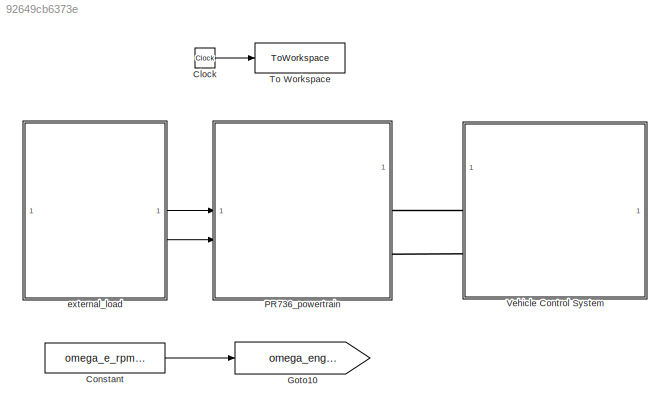
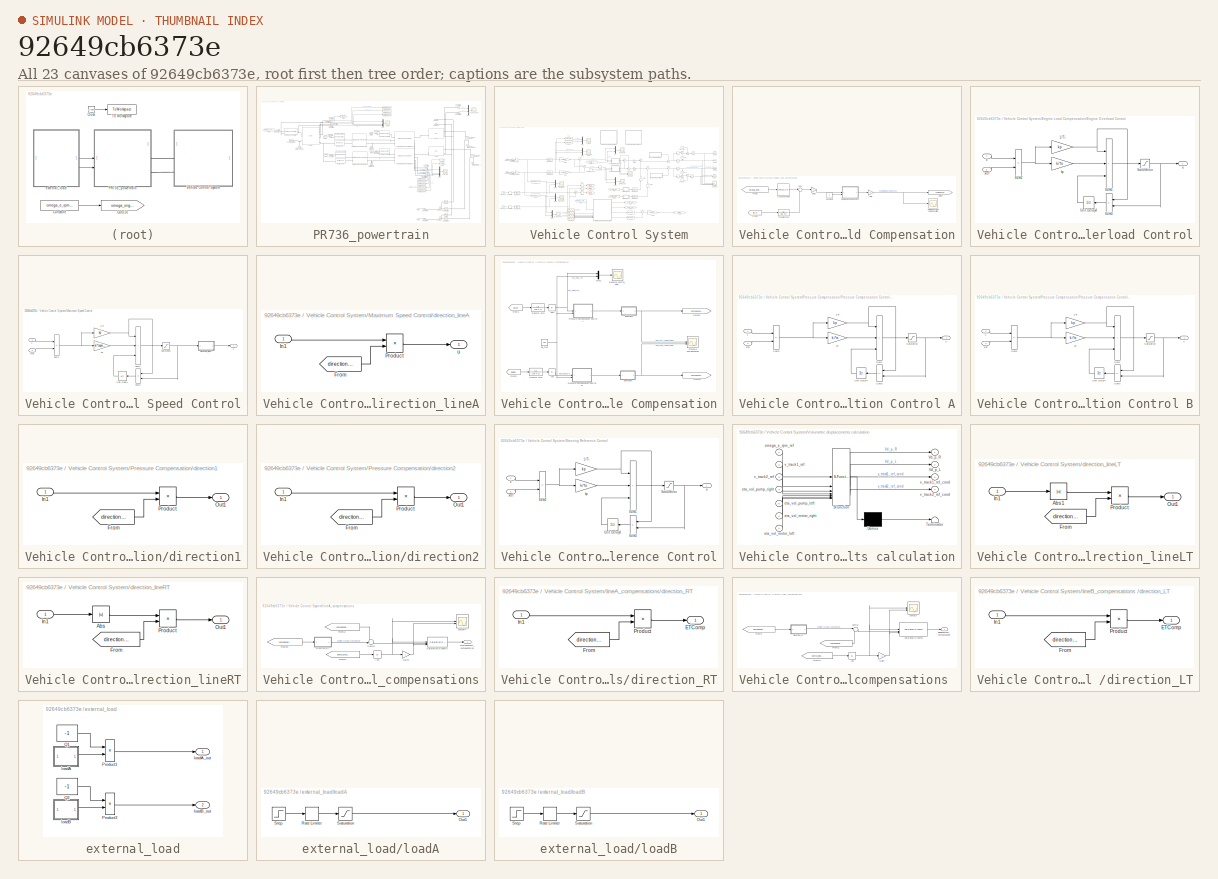
[diagram: thumbnail index - all 23 canvases of the model, root first then tree order]
MODEL slx_92649cb6373e
KIND model
CONFIG MaxStep = tsample
CONFIG RelTol = auto
CONFIG SolverName = ode23tb
CONFIG StopTime = simulation_length
BLOCK [Clock] Clock
BLOCK [Constant] Constant
  Value = omega_e_rpm_ref
BLOCK [Goto] Goto10
  GotoTag = omega_engine_reference
  TagVisibility = global
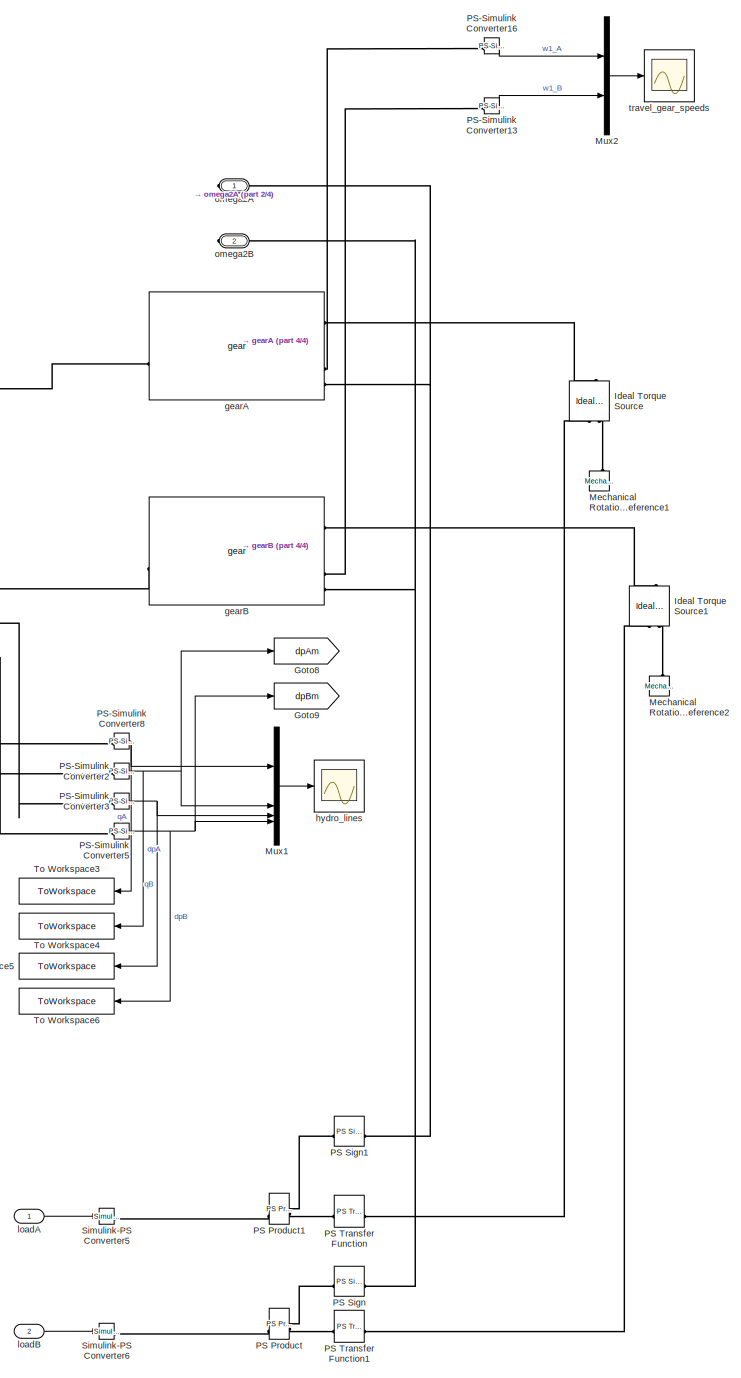
[diagram: PR736_powertrain - part 1/4, right side, full height]
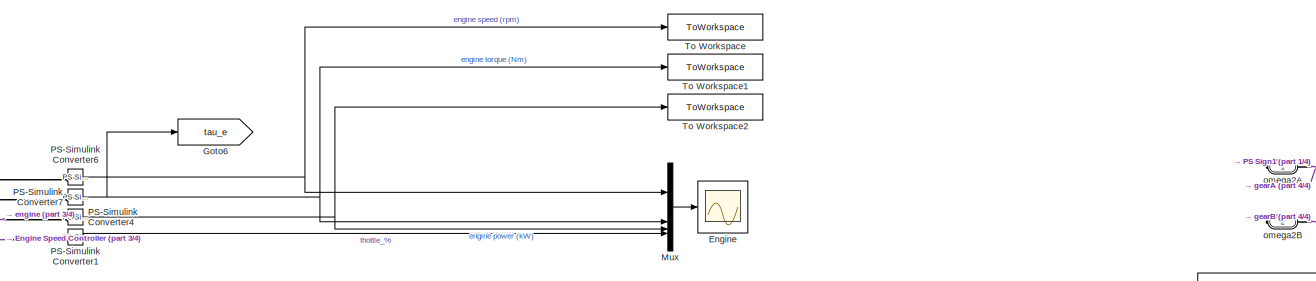
[diagram: PR736_powertrain - part 2/4, top center region]
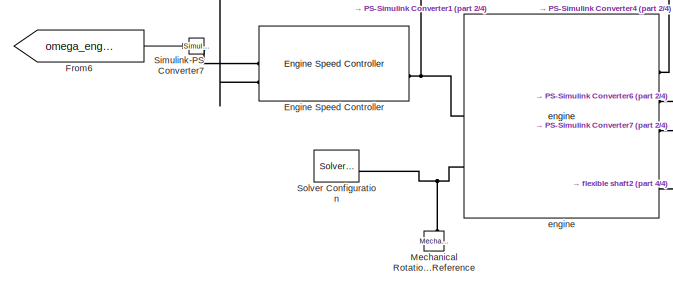
[diagram: PR736_powertrain - part 3/4, top left region]
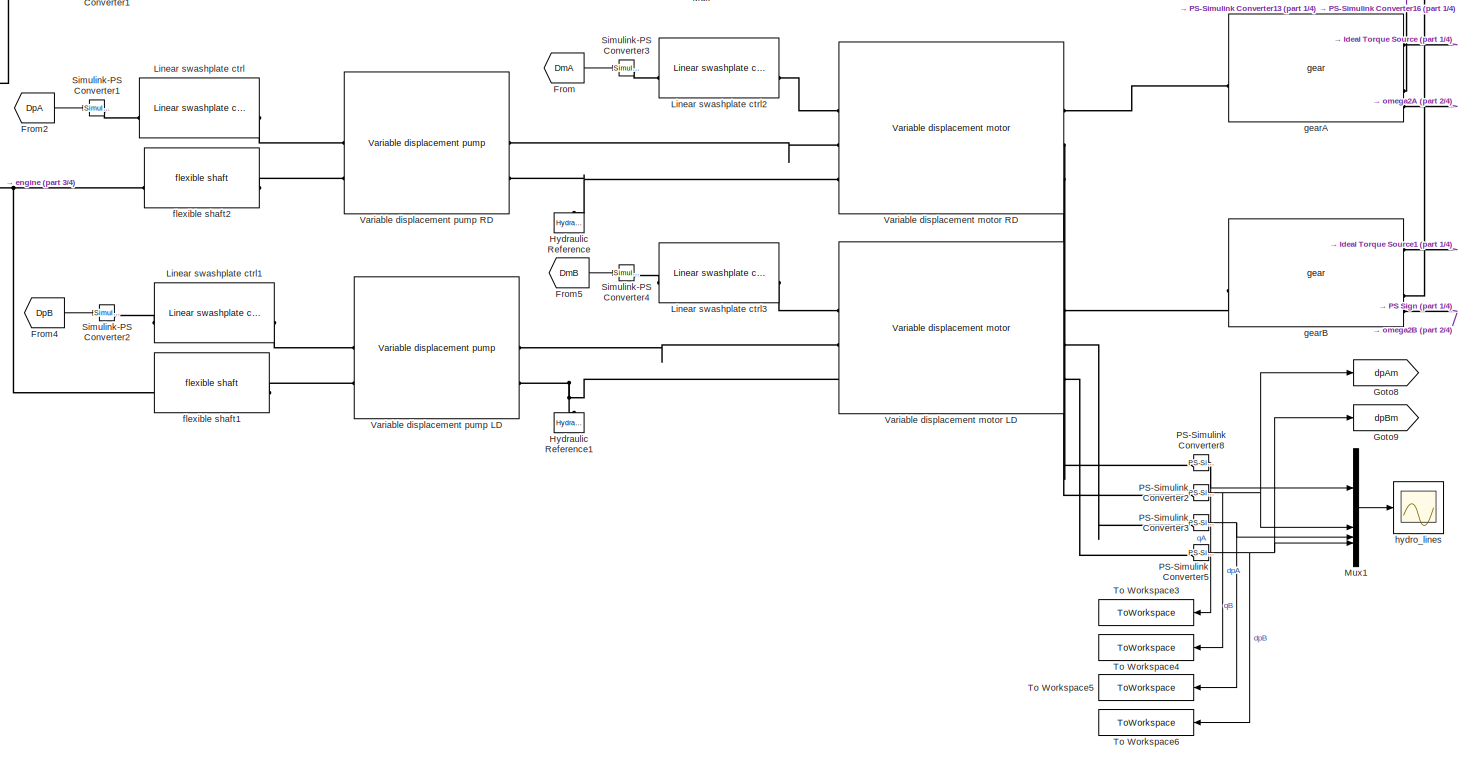
[diagram: PR736_powertrain - part 4/4, central region]
BLOCK [SubSystem] PR736_powertrain
BLOCK [Scope] PR736_powertrain/Engine
  ActiveDisplayYMaximum = 2213.60139
  ActiveDisplayYMinimum = -336.80549
  Floating = off
  GraphicalSettings = {"Style":{"BackgroundColor":[0.12941176470588237,0.12941176470588237,0.12941176470588237],"AxesColor":[0.07058823529411765,0.07058823529411765,0.07058823529411765],"LabelsColor":[0.8509803921568627,0.8509803921568627,0.8509803921568627],"PreserveColors":false,"Visible":[true,true,true,true],"LineStyle":["-","-","-","-"],"LineWidth":[3,3,3,3],"BarWidth":[0.9,0.9,0.9,0.9],"LineColor":["auto","auto",...<+2354ch>
  MultipleDisplayCache = [{"MaxYLimMag":2213.60139,"MaxYLimReal":2213.60139,"MinYLimMag":0,"MinYLimReal":-336.80549,"PlotAsMagnitudePhase":false,"ShowGrid":true,"ShowLegend":true,"Title":"%<SignalLabel>","YLabel":""}]
  NumInputPorts = 1
  SampleTime = tsample
  ScopeFrameLocation = window
  ShowLegend = on
  WasSavedAsWebScope = on
  WindowPosition = [180.000000,87.000000,1198.000000,642.000000,]
BLOCK [Reference] PR736_powertrain/Engine Speed Controller  REF=engine_speed_ctrl_lib/Engine Speed
Controller
  SourceBlock = engine_speed_ctrl_lib/Engine Speed\nController
  SourceType = Engine Speed\nController
BLOCK [From] PR736_powertrain/From
  GotoTag = DmA
  TagVisibility = global
BLOCK [From] PR736_powertrain/From2
  GotoTag = DpA
  TagVisibility = global
BLOCK [From] PR736_powertrain/From4
  GotoTag = DpB
  TagVisibility = global
BLOCK [From] PR736_powertrain/From5
  GotoTag = DmB
  TagVisibility = global
BLOCK [From] PR736_powertrain/From6
  GotoTag = omega_engine_reference
  TagVisibility = global
BLOCK [Goto] PR736_powertrain/Goto6
  GotoTag = tau_e
  TagVisibility = global
BLOCK [Goto] PR736_powertrain/Goto8
  GotoTag = dpAm
  TagVisibility = global
BLOCK [Goto] PR736_powertrain/Goto9
  GotoTag = dpBm
  TagVisibility = global
BLOCK [Reference] PR736_powertrain/Hydraulic Reference  REF=fl_lib/Hydraulic/Hydraulic Elements/Hydraulic Reference
  NameLocation = right
  SourceBlock = fl_lib/Hydraulic/Hydraulic Elements/Hydraulic Reference
  SourceType = Hydraulic Reference
BLOCK [Reference] PR736_powertrain/Hydraulic Reference1  REF=fl_lib/Hydraulic/Hydraulic Elements/Hydraulic Reference
  NameLocation = right
  SourceBlock = fl_lib/Hydraulic/Hydraulic Elements/Hydraulic Reference
  SourceType = Hydraulic Reference
BLOCK [Reference] PR736_powertrain/Ideal Torque Source  REF=fl_lib/Mechanical/Mechanical Sources/Ideal Torque Source
  NameLocation = right
  SourceBlock = fl_lib/Mechanical/Mechanical Sources/Ideal Torque Source
  SourceType = Ideal Torque Source
BLOCK [Reference] PR736_powertrain/Ideal Torque Source1  REF=fl_lib/Mechanical/Mechanical Sources/Ideal Torque Source
  NameLocation = right
  SourceBlock = fl_lib/Mechanical/Mechanical Sources/Ideal Torque Source
  SourceType = Ideal Torque Source
BLOCK [Reference] PR736_powertrain/Linear swashplate ctrl  REF=linear_swashplate_ctrl_lib/Linear swashplate
ctrl
  SourceBlock = linear_swashplate_ctrl_lib/Linear swashplate\nctrl
  SourceType = Linear swashplate\nctrl
BLOCK [Reference] PR736_powertrain/Linear swashplate ctrl1  REF=linear_swashplate_ctrl_lib/Linear swashplate
ctrl
  SourceBlock = linear_swashplate_ctrl_lib/Linear swashplate\nctrl
  SourceType = Linear swashplate\nctrl
BLOCK [Reference] PR736_powertrain/Linear swashplate ctrl2  REF=linear_swashplate_ctrl_lib/Linear swashplate
ctrl
  SourceBlock = linear_swashplate_ctrl_lib/Linear swashplate\nctrl
  SourceType = Linear swashplate\nctrl
BLOCK [Reference] PR736_powertrain/Linear swashplate ctrl3  REF=linear_swashplate_ctrl_lib/Linear swashplate
ctrl
  SourceBlock = linear_swashplate_ctrl_lib/Linear swashplate\nctrl
  SourceType = Linear swashplate\nctrl
BLOCK [Reference] PR736_powertrain/Mechanical Rotational Reference  REF=fl_lib/Mechanical/Rotational Elements/Mechanical
Rotational Reference
  NameLocation = right
  SourceBlock = fl_lib/Mechanical/Rotational Elements/Mechanical\nRotational Reference
  SourceType = Mechanical\nRotational Reference
BLOCK [Reference] PR736_powertrain/Mechanical Rotational Reference1  REF=fl_lib/Mechanical/Rotational Elements/Mechanical
Rotational Reference
  NameLocation = right
  SourceBlock = fl_lib/Mechanical/Rotational Elements/Mechanical\nRotational Reference
  SourceType = Mechanical\nRotational Reference
BLOCK [Reference] PR736_powertrain/Mechanical Rotational Reference2  REF=fl_lib/Mechanical/Rotational Elements/Mechanical
Rotational Reference
  NameLocation = right
  SourceBlock = fl_lib/Mechanical/Rotational Elements/Mechanical\nRotational Reference
  SourceType = Mechanical\nRotational Reference
BLOCK [Mux] PR736_powertrain/Mux
  DisplayOption = bar
BLOCK [Mux] PR736_powertrain/Mux1
  DisplayOption = bar
BLOCK [Mux] PR736_powertrain/Mux2
  DisplayOption = bar
  Inputs = 2
BLOCK [Reference] PR736_powertrain/PS Product  REF=fl_lib/Physical Signals/Functions/PS Product
  SourceBlock = fl_lib/Physical Signals/Functions/PS Product
  SourceType = PS Product
BLOCK [Reference] PR736_powertrain/PS Product1  REF=fl_lib/Physical Signals/Functions/PS Product
  SourceBlock = fl_lib/Physical Signals/Functions/PS Product
  SourceType = PS Product
BLOCK [Reference] PR736_powertrain/PS Sign  REF=fl_lib/Physical Signals/Nonlinear Operators/PS Sign
  NameLocation = top
  SourceBlock = fl_lib/Physical Signals/Nonlinear Operators/PS Sign
  SourceType = PS Sign
BLOCK [Reference] PR736_powertrain/PS Sign1  REF=fl_lib/Physical Signals/Nonlinear Operators/PS Sign
  NameLocation = top
  SourceBlock = fl_lib/Physical Signals/Nonlinear Operators/PS Sign
  SourceType = PS Sign
BLOCK [Reference] PR736_powertrain/PS Transfer Function  REF=fl_lib/Physical Signals/Linear Operators/PS Transfer Function
  SourceBlock = fl_lib/Physical Signals/Linear Operators/PS Transfer Function
  SourceType = PS Transfer Function
BLOCK [Reference] PR736_powertrain/PS Transfer Function1  REF=fl_lib/Physical Signals/Linear Operators/PS Transfer Function
  SourceBlock = fl_lib/Physical Signals/Linear Operators/PS Transfer Function
  SourceType = PS Transfer Function
BLOCK [Reference] PR736_powertrain/PS-Simulink Converter1  REF=nesl_utility/PS-Simulink
Converter
  SourceBlock = nesl_utility/PS-Simulink\nConverter
  SourceType = PS-Simulink\nConverter
BLOCK [Reference] PR736_powertrain/PS-Simulink Converter13  REF=nesl_utility/PS-Simulink
Converter
  SourceBlock = nesl_utility/PS-Simulink\nConverter
  SourceType = PS-Simulink\nConverter
BLOCK [Reference] PR736_powertrain/PS-Simulink Converter16  REF=nesl_utility/PS-Simulink
Converter
  SourceBlock = nesl_utility/PS-Simulink\nConverter
  SourceType = PS-Simulink\nConverter
BLOCK [Reference] PR736_powertrain/PS-Simulink Converter2  REF=nesl_utility/PS-Simulink
Converter
  SourceBlock = nesl_utility/PS-Simulink\nConverter
  SourceType = PS-Simulink\nConverter
BLOCK [Reference] PR736_powertrain/PS-Simulink Converter3  REF=nesl_utility/PS-Simulink
Converter
  SourceBlock = nesl_utility/PS-Simulink\nConverter
  SourceType = PS-Simulink\nConverter
BLOCK [Reference] PR736_powertrain/PS-Simulink Converter4  REF=nesl_utility/PS-Simulink
Converter
  SourceBlock = nesl_utility/PS-Simulink\nConverter
  SourceType = PS-Simulink\nConverter
BLOCK [Reference] PR736_powertrain/PS-Simulink Converter5  REF=nesl_utility/PS-Simulink
Converter
  SourceBlock = nesl_utility/PS-Simulink\nConverter
  SourceType = PS-Simulink\nConverter
BLOCK [Reference] PR736_powertrain/PS-Simulink Converter6  REF=nesl_utility/PS-Simulink
Converter
  SourceBlock = nesl_utility/PS-Simulink\nConverter
  SourceType = PS-Simulink\nConverter
BLOCK [Reference] PR736_powertrain/PS-Simulink Converter7  REF=nesl_utility/PS-Simulink
Converter
  SourceBlock = nesl_utility/PS-Simulink\nConverter
  SourceType = PS-Simulink\nConverter
BLOCK [Reference] PR736_powertrain/PS-Simulink Converter8  REF=nesl_utility/PS-Simulink
Converter
  SourceBlock = nesl_utility/PS-Simulink\nConverter
  SourceType = PS-Simulink\nConverter
BLOCK [Reference] PR736_powertrain/Simulink-PS Converter1  REF=nesl_utility/Simulink-PS
Converter
  SourceBlock = nesl_utility/Simulink-PS\nConverter
  SourceType = Simulink-PS\nConverter
BLOCK [Reference] PR736_powertrain/Simulink-PS Converter2  REF=nesl_utility/Simulink-PS
Converter
  SourceBlock = nesl_utility/Simulink-PS\nConverter
  SourceType = Simulink-PS\nConverter
BLOCK [Reference] PR736_powertrain/Simulink-PS Converter3  REF=nesl_utility/Simulink-PS
Converter
  SourceBlock = nesl_utility/Simulink-PS\nConverter
  SourceType = Simulink-PS\nConverter
BLOCK [Reference] PR736_powertrain/Simulink-PS Converter4  REF=nesl_utility/Simulink-PS
Converter
  SourceBlock = nesl_utility/Simulink-PS\nConverter
  SourceType = Simulink-PS\nConverter
BLOCK [Reference] PR736_powertrain/Simulink-PS Converter5  REF=nesl_utility/Simulink-PS
Converter
  SourceBlock = nesl_utility/Simulink-PS\nConverter
  SourceType = Simulink-PS\nConverter
BLOCK [Reference] PR736_powertrain/Simulink-PS Converter6  REF=nesl_utility/Simulink-PS
Converter
  SourceBlock = nesl_utility/Simulink-PS\nConverter
  SourceType = Simulink-PS\nConverter
BLOCK [Reference] PR736_powertrain/Simulink-PS Converter7  REF=nesl_utility/Simulink-PS
Converter
  SourceBlock = nesl_utility/Simulink-PS\nConverter
  SourceType = Simulink-PS\nConverter
BLOCK [Reference] PR736_powertrain/Solver Configuration  REF=nesl_utility/Solver
Configuration
  SourceBlock = nesl_utility/Solver\nConfiguration
  SourceType = Solver\nConfiguration
BLOCK [ToWorkspace] PR736_powertrain/To Workspace
  FixptAsFi = on
  MaxDataPoints = Nsample
  SampleTime = tsample
  VariableName = engine_speed_sim
BLOCK [ToWorkspace] PR736_powertrain/To Workspace1
  FixptAsFi = on
  MaxDataPoints = Nsample
  SampleTime = tsample
  VariableName = engine_torque_sim
BLOCK [ToWorkspace] PR736_powertrain/To Workspace2
  FixptAsFi = on
  MaxDataPoints = Nsample
  SampleTime = tsample
  VariableName = engine_power_sim
BLOCK [ToWorkspace] PR736_powertrain/To Workspace3
  FixptAsFi = on
  MaxDataPoints = Nsample
  NameLocation = top
  SampleTime = tsample
  VariableName = qA_sim
BLOCK [ToWorkspace] PR736_powertrain/To Workspace4
  FixptAsFi = on
  MaxDataPoints = Nsample
  NameLocation = top
  SampleTime = tsample
  VariableName = dpA_sim
BLOCK [ToWorkspace] PR736_powertrain/To Workspace5
  FixptAsFi = on
  MaxDataPoints = Nsample
  NameLocation = top
  SampleTime = tsample
  VariableName = qB_sim
BLOCK [ToWorkspace] PR736_powertrain/To Workspace6
  FixptAsFi = on
  MaxDataPoints = Nsample
  NameLocation = top
  SampleTime = tsample
  VariableName = dpB_sim
BLOCK [Reference] PR736_powertrain/Variable displacement motor LD  REF=variable_displacement_motor_lib/Variable
displacement motor
  SourceBlock = variable_displacement_motor_lib/Variable\ndisplacement motor
  SourceType = Variable\ndisplacement motor
BLOCK [Reference] PR736_powertrain/Variable displacement motor RD  REF=variable_displacement_motor_lib/Variable
displacement motor
  SourceBlock = variable_displacement_motor_lib/Variable\ndisplacement motor
  SourceType = Variable\ndisplacement motor
BLOCK [Reference] PR736_powertrain/Variable displacement pump LD  REF=variable_displacement_pump_lib/Variable
displacement pump
  SourceBlock = variable_displacement_pump_lib/Variable\ndisplacement pump
  SourceType = Variable\ndisplacement pump
BLOCK [Reference] PR736_powertrain/Variable displacement pump RD  REF=variable_displacement_pump_lib/Variable
displacement pump
  SourceBlock = variable_displacement_pump_lib/Variable\ndisplacement pump
  SourceType = Variable\ndisplacement pump
BLOCK [Reference] PR736_powertrain/engine  REF=engine_lib/engine  (lib defined in slx_c4798424b846)
  SourceBlock = engine_lib/engine
  SourceType = engine
BLOCK [Reference] PR736_powertrain/flexible shaft1  REF=flexshaft_lib/flexible shaft
  SourceBlock = flexshaft_lib/flexible shaft
  SourceType = flexible shaft
BLOCK [Reference] PR736_powertrain/flexible shaft2  REF=flexshaft_lib/flexible shaft
  SourceBlock = flexshaft_lib/flexible shaft
  SourceType = flexible shaft
BLOCK [Reference] PR736_powertrain/gearA  REF=gear_lib/gear
  SourceBlock = gear_lib/gear
  SourceType = gear
BLOCK [Reference] PR736_powertrain/gearB  REF=gear_lib/gear
  SourceBlock = gear_lib/gear
  SourceType = gear
BLOCK [Scope] PR736_powertrain/hydro_lines
  ActiveDisplayYMaximum = 408.5743
  ActiveDisplayYMinimum = -45.39714
  ContainerLayout = {"WindowBounds":[384,156,1280,768],"ToolstripCollapsed":true,"gridDimensions":{"w":1,"h":1},"tileCount":1,"tileCoverage":1,"columnWeights":1,"rowWeights":1,"tileOccupancy":{"children":[{"id":"/Vehicle Control System/Pressure Compensation/pressure_control_lineA"},{"id":"/Vehicle Control System/omega_driver_gears"},{"id":"/PR736_powertrain/hydro_lines"},{"id":"/Vehicle Control System/track_speed_tra...<+308ch>  <repeated x9 — deduplicated; at blocks: hydro_lines, Engine Torque Compensation, Pressure Compensation, pressure_control_lineA, omega_driver_gears, track_speed_tracking1, track_speeds, tracking_diff, v_tracks>
  DataLoggingVariableName = ScopeData1
  Floating = off
  GraphicalSettings = {"Style":{"BackgroundColor":[0.12941176470588237,0.12941176470588237,0.12941176470588237],"AxesColor":[0.07058823529411765,0.07058823529411765,0.07058823529411765],"LabelsColor":[0.8509803921568627,0.8509803921568627,0.8509803921568627],"PreserveColors":false,"Visible":[true,true,true,true],"LineStyle":["-","-","-","-"],"LineWidth":[3,3,3,3],"BarWidth":[0.9,0.9,0.9,0.9],"LineColor":["auto","auto",...<+2240ch>
  MultipleDisplayCache = [{"MaxYLimMag":408.5743,"MaxYLimReal":408.5743,"MinYLimMag":0,"MinYLimReal":-45.39714,"PlotAsMagnitudePhase":false,"ShowGrid":true,"ShowLegend":true,"Title":"%<SignalLabel>","YLabel":""}]
  NumInputPorts = 1
  SampleTime = tsample
  ScopeFrameLocation = container
  ShowLegend = on
  Visible = on
  WasSavedAsWebScope = on
  WindowPosition = [384.000000,156.000000,1280.000000,768.000000,]
BLOCK [Inport] PR736_powertrain/loadA
BLOCK [Inport] PR736_powertrain/loadB
  Port = 2
BLOCK [PMIOPort] PR736_powertrain/omega2A
  Side = Right
BLOCK [PMIOPort] PR736_powertrain/omega2B
  Port = 2
  Side = Right
BLOCK [Scope] PR736_powertrain/travel_gear_speeds
  ActiveDisplayYMaximum = 232.94808
  ActiveDisplayYMinimum = -2096.53273
  DataLoggingVariableName = ScopeData3
  Floating = off
  GraphicalSettings = {"GraphicalSettings":{"LegacySettings":true,"Style":{"AxesScalingProperties":{"ScaleAxesLimitsAtStop":false},"Style":{"AxesColor":"[0 0 0]","ChannelNames":[""],"ColorOrder":"[1 1 0.0666666666666667;0.0745098039215686 0.623529411764706 1;1 0.411764705882353 0.16078431372549;0.392156862745098 0.831372549019608 0.0745098039215686;0.717647058823529 0.274509803921569 1;0.0588235294117647 1 1;1 0.074509...<+510ch>
  MultipleDisplayCache = [{"MaxYLimMag":2096.53273,"MaxYLimReal":232.94808,"MinYLimMag":0,"MinYLimReal":-2096.53273,"PlotAsMagnitudePhase":false,"ShowGrid":true,"ShowLegend":true,"Title":"%<SignalLabel>","YLabel":""}]
  NumInputPorts = 1
  SampleTime = tsample
  ShowLegend = on
  WasSavedAsWebScope = on
  WindowPosition = [344 259 1199 642]
BLOCK [ToWorkspace] To Workspace
  FixptAsFi = on
  MaxDataPoints = Nsample
  SampleTime = tsample
  VariableName = time
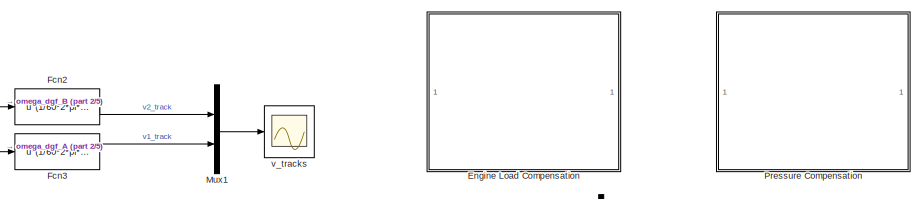
[diagram: Vehicle Control System - part 1/5, top center region]
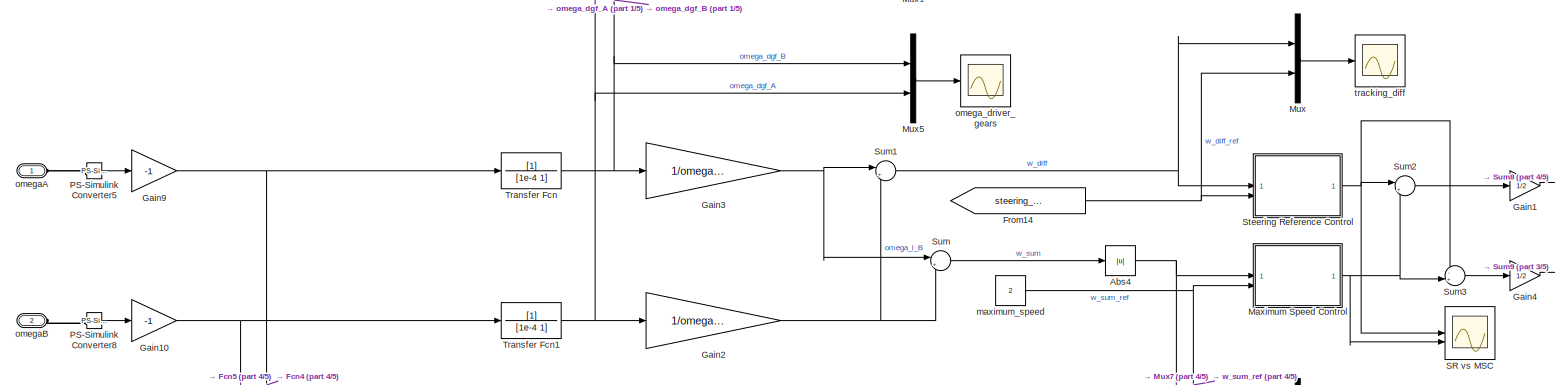
[diagram: Vehicle Control System - part 2/5, middle left region]
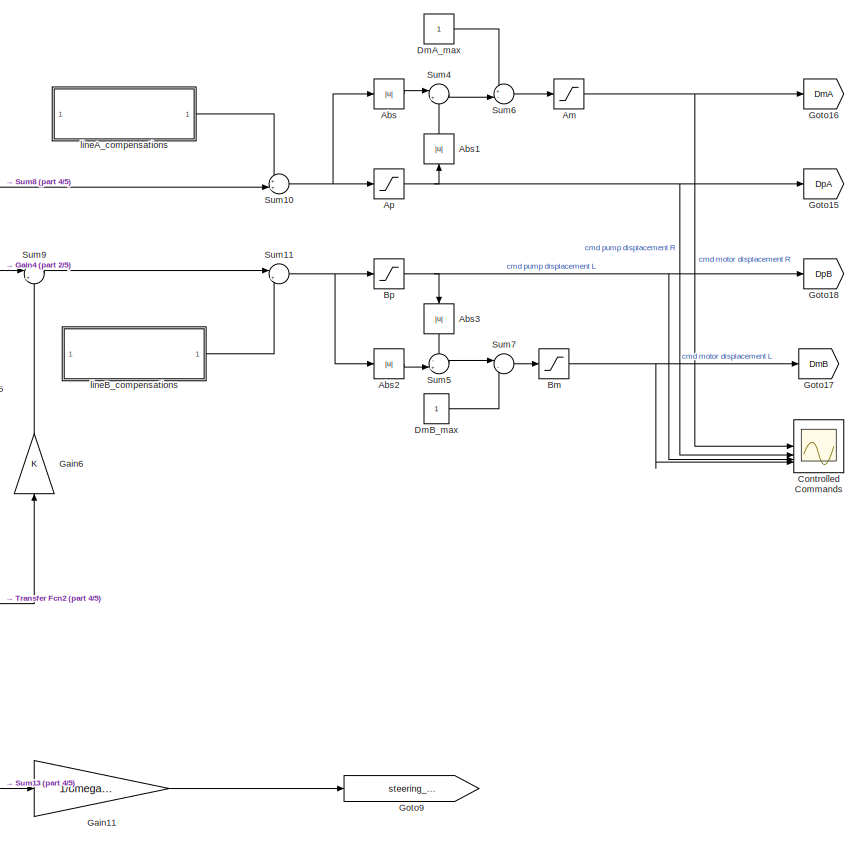
[diagram: Vehicle Control System - part 3/5, right side, full height]
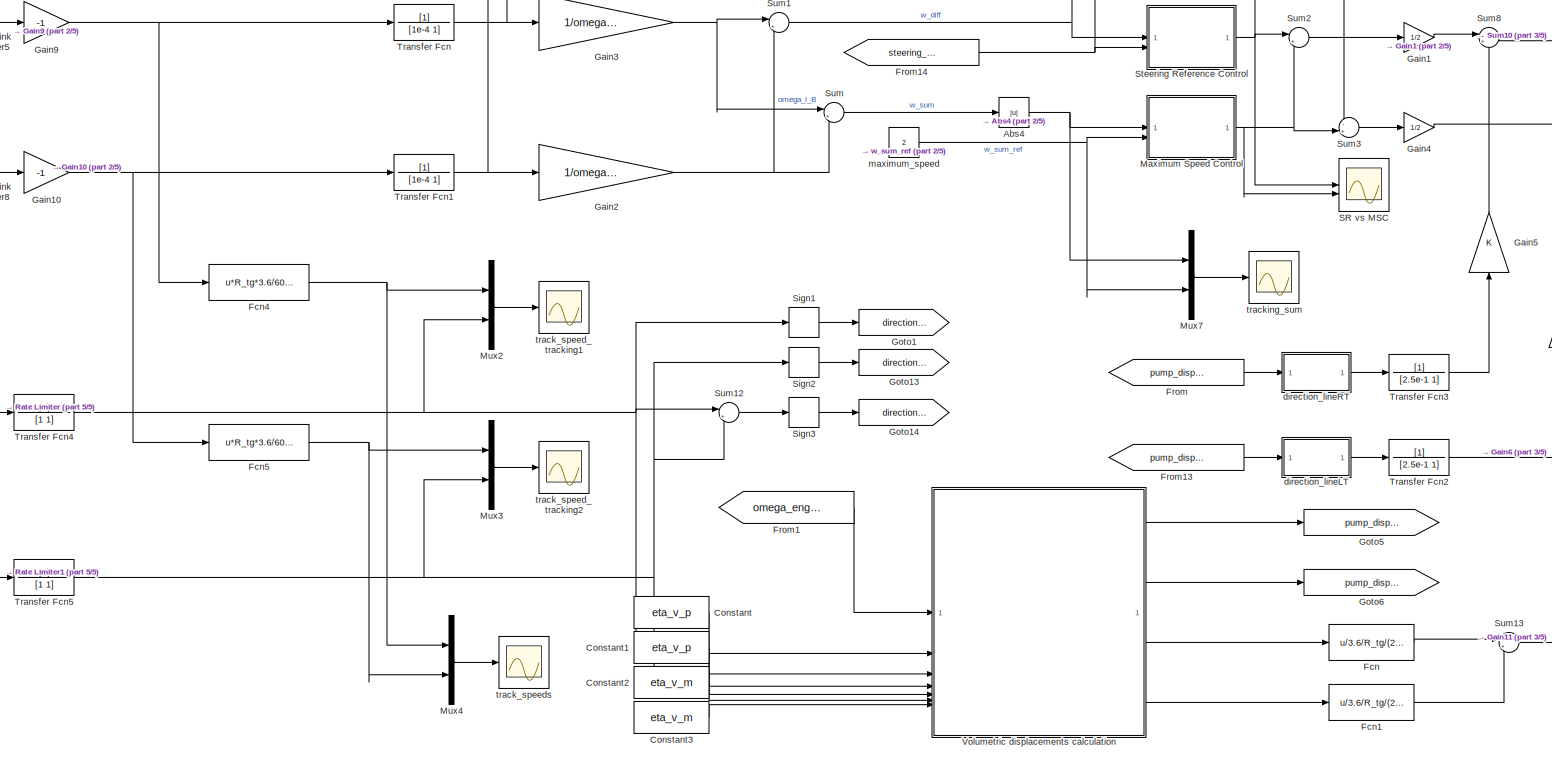
[diagram: Vehicle Control System - part 4/5, central region]
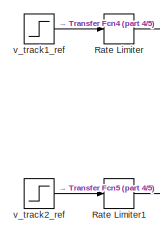
[diagram: Vehicle Control System - part 5/5, bottom left region]
BLOCK [SubSystem] Vehicle Control System
BLOCK [Abs] Vehicle Control System/Abs
  SaturateOnIntegerOverflow = off
BLOCK [Abs] Vehicle Control System/Abs1
  NameLocation = right
  SaturateOnIntegerOverflow = off
BLOCK [Abs] Vehicle Control System/Abs2
  SaturateOnIntegerOverflow = off
BLOCK [Abs] Vehicle Control System/Abs3
  NameLocation = left
  SaturateOnIntegerOverflow = off
BLOCK [Abs] Vehicle Control System/Abs4
  SaturateOnIntegerOverflow = off
BLOCK [Saturate] Vehicle Control System/Am
  LowerLimit = 0.36
  UpperLimit = 1
BLOCK [Saturate] Vehicle Control System/Ap
  LowerLimit = -1
  NameLocation = top
  UpperLimit = 1
BLOCK [Saturate] Vehicle Control System/Bm
  LowerLimit = 0.36
  UpperLimit = 1
BLOCK [Saturate] Vehicle Control System/Bp
  LowerLimit = -1
  UpperLimit = 1
BLOCK [Constant] Vehicle Control System/Constant
  Value = eta_v_p
BLOCK [Constant] Vehicle Control System/Constant1
  Value = eta_v_p
BLOCK [Constant] Vehicle Control System/Constant2
  Value = eta_v_m
BLOCK [Constant] Vehicle Control System/Constant3
  Value = eta_v_m
BLOCK [Scope] Vehicle Control System/Controlled Commands
  ActiveDisplayYMaximum = 1.1314
  ActiveDisplayYMinimum = -0.1826
  DataLoggingVariableName = ScopeData5
  Floating = off
  GraphicalSettings = {"GraphicalSettings":{"LegacySettings":true,"Style":{"AxesScalingProperties":{"ScaleAxesLimitsAtStop":false},"Style":{"AxesColor":"[0 0 0]","ChannelNames":[""],"ColorOrder":"[1 1 0.0666666666666667;0.0745098039215686 0.623529411764706 1;1 0.411764705882353 0.16078431372549;0.392156862745098 0.831372549019608 0.0745098039215686;0.717647058823529 0.274509803921569 1;0.0588235294117647 1 1;1 0.074509...<+612ch>
  MultipleDisplayCache = [{"MaxYLimMag":1.1314,"MaxYLimReal":1.1314,"MinYLimMag":0,"MinYLimReal":-0.1826,"PlotAsMagnitudePhase":false,"ShowGrid":true,"ShowLegend":true,"Title":"%<SignalLabel>","YLabel":""}]
  NumInputPorts = 4
  SampleTime = tsample
  ShowLegend = on
  WasSavedAsWebScope = on
  WindowPosition = [480 409 1197 643]
BLOCK [Constant] Vehicle Control System/DmA_max
BLOCK [Constant] Vehicle Control System/DmB_max
BLOCK [SubSystem] Vehicle Control System/Engine Load Compensation
BLOCK [Lookup_n-D] Vehicle Control System/Engine Load Compensation/1-D Lookup Table
  BreakpointsForDimension1 = rpm
  InputPortMap = u0
  InternalRulePriority = Speed
  NumberOfTableDimensions = 1
  RndMeth = Simplest
  Table = available_torque
BLOCK [Constant] Vehicle Control System/Engine Load Compensation/Constant1
  Value = 0
BLOCK [SubSystem] Vehicle Control System/Engine Load Compensation/Engine Overload Control
BLOCK [Gain] Vehicle Control System/Engine Load Compensation/Engine Overload Control/1//Ti
  Gain = kp
  OutDataTypeStr = Inherit: Same as input
  ParamDataTypeStr = Inherit: Same as input
  SaturateOnIntegerOverflow = on
BLOCK [Saturate] Vehicle Control System/Engine Load Compensation/Engine Overload Control/Saturation
  LowerLimit = sat_neg
  UpperLimit = sat_pos
BLOCK [Sum] Vehicle Control System/Engine Load Compensation/Engine Overload Control/Sum1
  IconShape = rectangular
  Inputs = +++
  SaturateOnIntegerOverflow = on
BLOCK [Sum] Vehicle Control System/Engine Load Compensation/Engine Overload Control/Sum2
  IconShape = rectangular
  Inputs = -+
  SaturateOnIntegerOverflow = on
BLOCK [Sum] Vehicle Control System/Engine Load Compensation/Engine Overload Control/Sum3
  IconShape = rectangular
  Inputs = -+
  NameLocation = top
  SaturateOnIntegerOverflow = on
BLOCK [UnitDelay] Vehicle Control System/Engine Load Compensation/Engine Overload Control/Unit Delay4
  SampleTime = tsample
BLOCK [Gain] Vehicle Control System/Engine Load Compensation/Engine Overload Control/kp
  Gain = ki*ts
  OutDataTypeStr = Inherit: Same as input
  ParamDataTypeStr = Inherit: Same as input
  SaturateOnIntegerOverflow = on
BLOCK [Outport] Vehicle Control System/Engine Load Compensation/Engine Overload Control/u
BLOCK [Inport] Vehicle Control System/Engine Load Compensation/Engine Overload Control/x
BLOCK [Inport] Vehicle Control System/Engine Load Compensation/Engine Overload Control/xref
  Port = 2
BLOCK [Scope] Vehicle Control System/Engine Load Compensation/Engine Torque Compensation
  ActiveDisplayYMaximum = 0.205
  ActiveDisplayYMinimum = -1.845
  DataLoggingVariableName = ScopeData4
  Floating = off
  GraphicalSettings = {"Style":{"BackgroundColor":[0.12941176470588237,0.12941176470588237,0.12941176470588237],"AxesColor":[0.07058823529411765,0.07058823529411765,0.07058823529411765],"LabelsColor":[0.8509803921568627,0.8509803921568627,0.8509803921568627],"PreserveColors":false,"Visible":[true],"LineStyle":["-"],"LineWidth":[3],"BarWidth":[0.9],"LineColor":["auto"],"LineFaceAlpha":[1],"LineEdgeAlpha":[1],"Marker":["...<+1957ch>
  MultipleDisplayCache = [{"MaxYLimMag":1.845,"MaxYLimReal":0.205,"MinYLimMag":0,"MinYLimReal":-1.845,"PlotAsMagnitudePhase":false,"ShowGrid":true,"ShowLegend":true,"Title":"%<SignalLabel>","YLabel":""}]
  NumInputPorts = 1
  SampleTime = tsample
  ScopeFrameLocation = container
  ShowLegend = on
  Visible = on
  WasSavedAsWebScope = on
  WindowPosition = [384.000000,156.000000,1280.000000,768.000000,]
BLOCK [From] Vehicle Control System/Engine Load Compensation/From1
  GotoTag = omega_engine_reference
  TagVisibility = global
BLOCK [From] Vehicle Control System/Engine Load Compensation/From3
  GotoTag = tau_e
  TagVisibility = global
BLOCK [Gain] Vehicle Control System/Engine Load Compensation/Gain
  Gain = -1
BLOCK [Gain] Vehicle Control System/Engine Load Compensation/Gain1
BLOCK [Goto] Vehicle Control System/Engine Load Compensation/Goto7
  GotoTag = compensation_engine
  TagVisibility = global
BLOCK [Sum] Vehicle Control System/Engine Load Compensation/Sum
  Inputs = |+-
BLOCK [TransferFcn] Vehicle Control System/Engine Load Compensation/Transfer Fcn4
  Denominator = [1e-4 1]
BLOCK [Fcn] Vehicle Control System/Fcn
  Expr = u/3.6/R_tg/(2*pi)*60
BLOCK [Fcn] Vehicle Control System/Fcn1
  Expr = u/3.6/R_tg/(2*pi)*60
BLOCK [Fcn] Vehicle Control System/Fcn2
  Expr = u*(1/60*2*pi*R_tg*3.6)
BLOCK [Fcn] Vehicle Control System/Fcn3
  Expr = u*(1/60*2*pi*R_tg*3.6)
BLOCK [Fcn] Vehicle Control System/Fcn4
  Expr = u*R_tg*3.6/60*2*pi
BLOCK [Fcn] Vehicle Control System/Fcn5
  Expr = u*R_tg*3.6/60*2*pi
BLOCK [From] Vehicle Control System/From
  GotoTag = pump_displacement_A
  TagVisibility = global
BLOCK [From] Vehicle Control System/From1
  GotoTag = omega_engine_reference
  TagVisibility = global
BLOCK [From] Vehicle Control System/From13
  GotoTag = pump_displacement_B
  TagVisibility = global
BLOCK [From] Vehicle Control System/From14
  GotoTag = steering_reference
  TagVisibility = global
BLOCK [Gain] Vehicle Control System/Gain1
  Gain = 1/2
BLOCK [Gain] Vehicle Control System/Gain10
  Gain = -1
BLOCK [Gain] Vehicle Control System/Gain11
  Gain = 1/omega_l_max_rpm
BLOCK [Gain] Vehicle Control System/Gain2
  Gain = 1/omega_l_max_rpm
BLOCK [Gain] Vehicle Control System/Gain3
  Gain = 1/omega_l_max_rpm
BLOCK [Gain] Vehicle Control System/Gain4
  Gain = 1/2
BLOCK [Gain] Vehicle Control System/Gain5
  NameLocation = right
BLOCK [Gain] Vehicle Control System/Gain6
  NameLocation = right
BLOCK [Gain] Vehicle Control System/Gain9
  Gain = -1
BLOCK [Goto] Vehicle Control System/Goto1
  GotoTag = direction_RT
  TagVisibility = global
BLOCK [Goto] Vehicle Control System/Goto13
  GotoTag = direction_LT
  TagVisibility = global
BLOCK [Goto] Vehicle Control System/Goto14
  GotoTag = direction_SUM
  TagVisibility = global
BLOCK [Goto] Vehicle Control System/Goto15
  GotoTag = DpA
  TagVisibility = global
BLOCK [Goto] Vehicle Control System/Goto16
  GotoTag = DmA
  TagVisibility = global
BLOCK [Goto] Vehicle Control System/Goto17
  GotoTag = DmB
  TagVisibility = global
BLOCK [Goto] Vehicle Control System/Goto18
  GotoTag = DpB
  TagVisibility = global
BLOCK [Goto] Vehicle Control System/Goto5
  GotoTag = pump_displacement_A
  TagVisibility = global
BLOCK [Goto] Vehicle Control System/Goto6
  GotoTag = pump_displacement_B
  TagVisibility = global
BLOCK [Goto] Vehicle Control System/Goto9
  GotoTag = steering_reference
  TagVisibility = global
BLOCK [SubSystem] Vehicle Control System/Maximum Speed Control
BLOCK [Gain] Vehicle Control System/Maximum Speed Control/1//Ti
  Gain = kp
  OutDataTypeStr = Inherit: Same as input
  ParamDataTypeStr = Inherit: Same as input
  SaturateOnIntegerOverflow = on
BLOCK [Saturate] Vehicle Control System/Maximum Speed Control/Saturation
  LowerLimit = sat_neg
  UpperLimit = sat_pos
BLOCK [Sum] Vehicle Control System/Maximum Speed Control/Sum1
  IconShape = rectangular
  Inputs = +++
  SaturateOnIntegerOverflow = on
BLOCK [Sum] Vehicle Control System/Maximum Speed Control/Sum2
  IconShape = rectangular
  Inputs = -+
  SaturateOnIntegerOverflow = on
BLOCK [Sum] Vehicle Control System/Maximum Speed Control/Sum3
  IconShape = rectangular
  Inputs = -+
  NameLocation = top
  SaturateOnIntegerOverflow = on
BLOCK [UnitDelay] Vehicle Control System/Maximum Speed Control/Unit Delay4
  SampleTime = ts
BLOCK [SubSystem] Vehicle Control System/Maximum Speed Control/direction_lineA
BLOCK [From] Vehicle Control System/Maximum Speed Control/direction_lineA/From
  GotoTag = direction_SUM
  TagVisibility = global
BLOCK [Inport] Vehicle Control System/Maximum Speed Control/direction_lineA/In1
BLOCK [Product] Vehicle Control System/Maximum Speed Control/direction_lineA/Product
BLOCK [Outport] Vehicle Control System/Maximum Speed Control/direction_lineA/u
BLOCK [Gain] Vehicle Control System/Maximum Speed Control/kp
  Gain = ki*tsample
  OutDataTypeStr = Inherit: Same as input
  ParamDataTypeStr = Inherit: Same as input
  SaturateOnIntegerOverflow = on
BLOCK [Outport] Vehicle Control System/Maximum Speed Control/u
BLOCK [Inport] Vehicle Control System/Maximum Speed Control/x
BLOCK [Inport] Vehicle Control System/Maximum Speed Control/xref
  Port = 2
BLOCK [Mux] Vehicle Control System/Mux
  DisplayOption = bar
  Inputs = 2
BLOCK [Mux] Vehicle Control System/Mux1
  DisplayOption = bar
  Inputs = 2
BLOCK [Mux] Vehicle Control System/Mux2
  DisplayOption = bar
  Inputs = 2
BLOCK [Mux] Vehicle Control System/Mux3
  DisplayOption = bar
  Inputs = 2
BLOCK [Mux] Vehicle Control System/Mux4
  DisplayOption = bar
  Inputs = 2
BLOCK [Mux] Vehicle Control System/Mux5
  DisplayOption = bar
  Inputs = 2
BLOCK [Mux] Vehicle Control System/Mux7
  DisplayOption = bar
  Inputs = 2
BLOCK [Reference] Vehicle Control System/PS-Simulink Converter5  REF=nesl_utility/PS-Simulink
Converter
  SourceBlock = nesl_utility/PS-Simulink\nConverter
  SourceType = PS-Simulink\nConverter
BLOCK [Reference] Vehicle Control System/PS-Simulink Converter8  REF=nesl_utility/PS-Simulink
Converter
  SourceBlock = nesl_utility/PS-Simulink\nConverter
  SourceType = PS-Simulink\nConverter
BLOCK [SubSystem] Vehicle Control System/Pressure Compensation
BLOCK [Abs] Vehicle Control System/Pressure Compensation/Abs
  SaturateOnIntegerOverflow = off
BLOCK [Abs] Vehicle Control System/Pressure Compensation/Abs1
  SaturateOnIntegerOverflow = off
BLOCK [From] Vehicle Control System/Pressure Compensation/From1
  GotoTag = dpAm
  TagVisibility = global
BLOCK [From] Vehicle Control System/Pressure Compensation/From6
  GotoTag = dpBm
  TagVisibility = global
BLOCK [Goto] Vehicle Control System/Pressure Compensation/Goto10
  GotoTag = compensation_pressureA
  TagVisibility = global
BLOCK [Goto] Vehicle Control System/Pressure Compensation/Goto11
  GotoTag = compensation_pressureB
  TagVisibility = global
BLOCK [Mux] Vehicle Control System/Pressure Compensation/Mux2
  DisplayOption = bar
  Inputs = 2
BLOCK [Scope] Vehicle Control System/Pressure Compensation/Pressure Compensation
  ActiveDisplayYMaximum = 1
  ActiveDisplayYMinimum = -1
  DataLoggingVariableName = ScopeData1
  Floating = off
  GraphicalSettings = {"Style":{"BackgroundColor":[0.12941176470588237,0.12941176470588237,0.12941176470588237],"AxesColor":[0.07058823529411765,0.07058823529411765,0.07058823529411765],"LabelsColor":[0.8509803921568627,0.8509803921568627,0.8509803921568627],"PreserveColors":false,"Visible":[true,true],"LineStyle":["-","-"],"LineWidth":[1.5,1.5],"BarWidth":[0.9,0.9],"LineColor":["auto","auto"],"LineFaceAlpha":[1,1],"Li...<+2095ch>
  MultipleDisplayCache = [{"MaxYLimMag":1,"MaxYLimReal":1,"MinYLimMag":0,"MinYLimReal":-1,"PlotAsMagnitudePhase":false,"ShowGrid":true,"ShowLegend":true,"Title":"%<SignalLabel>","YLabel":""}]
  NumInputPorts = 2
  SampleTime = tsample
  ScopeFrameLocation = container
  ShowLegend = on
  Visible = on
  WasSavedAsWebScope = on
  WindowPosition = [384.000000,156.000000,1280.000000,768.000000,]
BLOCK [SubSystem] Vehicle Control System/Pressure Compensation/Pressure Compensation Control A
BLOCK [Gain] Vehicle Control System/Pressure Compensation/Pressure Compensation Control A/1//Ti
  Gain = kp
  OutDataTypeStr = Inherit: Same as input
  ParamDataTypeStr = Inherit: Same as input
  SaturateOnIntegerOverflow = on
BLOCK [Saturate] Vehicle Control System/Pressure Compensation/Pressure Compensation Control A/Saturation
  LowerLimit = sat_neg
  UpperLimit = sat_pos
BLOCK [Sum] Vehicle Control System/Pressure Compensation/Pressure Compensation Control A/Sum1
  IconShape = rectangular
  Inputs = +++
  SaturateOnIntegerOverflow = on
BLOCK [Sum] Vehicle Control System/Pressure Compensation/Pressure Compensation Control A/Sum2
  IconShape = rectangular
  Inputs = -+
  SaturateOnIntegerOverflow = on
BLOCK [Sum] Vehicle Control System/Pressure Compensation/Pressure Compensation Control A/Sum3
  IconShape = rectangular
  Inputs = -+
  NameLocation = top
  SaturateOnIntegerOverflow = on
BLOCK [UnitDelay] Vehicle Control System/Pressure Compensation/Pressure Compensation Control A/Unit Delay4
  SampleTime = tsample
BLOCK [Gain] Vehicle Control System/Pressure Compensation/Pressure Compensation Control A/kp
  Gain = ki*ts
  OutDataTypeStr = Inherit: Same as input
  ParamDataTypeStr = Inherit: Same as input
  SaturateOnIntegerOverflow = on
BLOCK [Outport] Vehicle Control System/Pressure Compensation/Pressure Compensation Control A/u
BLOCK [Inport] Vehicle Control System/Pressure Compensation/Pressure Compensation Control A/x
BLOCK [Inport] Vehicle Control System/Pressure Compensation/Pressure Compensation Control A/xref
  Port = 2
BLOCK [SubSystem] Vehicle Control System/Pressure Compensation/Pressure Compensation Control B
BLOCK [Gain] Vehicle Control System/Pressure Compensation/Pressure Compensation Control B/1//Ti
  Gain = kp
  OutDataTypeStr = Inherit: Same as input
  ParamDataTypeStr = Inherit: Same as input
  SaturateOnIntegerOverflow = on
BLOCK [Saturate] Vehicle Control System/Pressure Compensation/Pressure Compensation Control B/Saturation
  LowerLimit = sat_neg
  UpperLimit = sat_pos
BLOCK [Sum] Vehicle Control System/Pressure Compensation/Pressure Compensation Control B/Sum1
  IconShape = rectangular
  Inputs = +++
  SaturateOnIntegerOverflow = on
BLOCK [Sum] Vehicle Control System/Pressure Compensation/Pressure Compensation Control B/Sum2
  IconShape = rectangular
  Inputs = -+
  SaturateOnIntegerOverflow = on
BLOCK [Sum] Vehicle Control System/Pressure Compensation/Pressure Compensation Control B/Sum3
  IconShape = rectangular
  Inputs = -+
  NameLocation = top
  SaturateOnIntegerOverflow = on
BLOCK [UnitDelay] Vehicle Control System/Pressure Compensation/Pressure Compensation Control B/Unit Delay4
  SampleTime = tsample
BLOCK [Gain] Vehicle Control System/Pressure Compensation/Pressure Compensation Control B/kp
  Gain = ki*ts
  OutDataTypeStr = Inherit: Same as input
  ParamDataTypeStr = Inherit: Same as input
  SaturateOnIntegerOverflow = on
BLOCK [Outport] Vehicle Control System/Pressure Compensation/Pressure Compensation Control B/u
BLOCK [Inport] Vehicle Control System/Pressure Compensation/Pressure Compensation Control B/x
BLOCK [Inport] Vehicle Control System/Pressure Compensation/Pressure Compensation Control B/xref
  Port = 2
BLOCK [TransferFcn] Vehicle Control System/Pressure Compensation/Transfer Fcn1
  Denominator = [1e-4 1]
BLOCK [TransferFcn] Vehicle Control System/Pressure Compensation/Transfer Fcn2
  Denominator = [1e-4 1]
BLOCK [SubSystem] Vehicle Control System/Pressure Compensation/direction1
BLOCK [From] Vehicle Control System/Pressure Compensation/direction1/From
  GotoTag = direction_RT
  TagVisibility = global
BLOCK [Inport] Vehicle Control System/Pressure Compensation/direction1/In1
BLOCK [Outport] Vehicle Control System/Pressure Compensation/direction1/Out1
BLOCK [Product] Vehicle Control System/Pressure Compensation/direction1/Product
BLOCK [SubSystem] Vehicle Control System/Pressure Compensation/direction2
BLOCK [From] Vehicle Control System/Pressure Compensation/direction2/From
  GotoTag = direction_LT
  TagVisibility = global
BLOCK [Inport] Vehicle Control System/Pressure Compensation/direction2/In1
BLOCK [Outport] Vehicle Control System/Pressure Compensation/direction2/Out1
BLOCK [Product] Vehicle Control System/Pressure Compensation/direction2/Product
BLOCK [Constant] Vehicle Control System/Pressure Compensation/dp_max
  Value = 360
BLOCK [Scope] Vehicle Control System/Pressure Compensation/pressure_control_lineA
  ActiveDisplayYMaximum = 480.60302
  ActiveDisplayYMinimum = -53.40034
  DataLoggingVariableName = ScopeData6
  Floating = off
  GraphicalSettings = {"Style":{"BackgroundColor":[0.12941176470588237,0.12941176470588237,0.12941176470588237],"AxesColor":[0.07058823529411765,0.07058823529411765,0.07058823529411765],"LabelsColor":[0.8509803921568627,0.8509803921568627,0.8509803921568627],"PreserveColors":false,"Visible":[true,true],"LineStyle":["-","-"],"LineWidth":[3,3],"BarWidth":[0.9,0.9],"LineColor":["auto","auto"],"LineFaceAlpha":[1,1],"LineEd...<+2070ch>
  MultipleDisplayCache = [{"MaxYLimMag":480.60302,"MaxYLimReal":480.60302,"MinYLimMag":0,"MinYLimReal":-53.40034,"PlotAsMagnitudePhase":false,"ShowGrid":true,"ShowLegend":true,"Title":"%<SignalLabel>","YLabel":""}]
  NumInputPorts = 1
  SampleTime = tsample
  ScopeFrameLocation = container
  ShowLegend = on
  Visible = on
  WasSavedAsWebScope = on
  WindowPosition = [384.000000,156.000000,1280.000000,768.000000,]
BLOCK [RateLimiter] Vehicle Control System/Rate Limiter
  FallingSlewLimit = -v_track1_ref/4
  RisingSlewLimit = v_track1_ref/4
  SampleTimeMode = inherited
BLOCK [RateLimiter] Vehicle Control System/Rate Limiter1
  FallingSlewLimit = -v_track2_ref/4
  RisingSlewLimit = v_track2_ref/4
  SampleTimeMode = inherited
BLOCK [Scope] Vehicle Control System/SR vs MSC
  ActiveDisplayYMaximum = 7E-16
  ActiveDisplayYMinimum = -9E-16
  DataLoggingVariableName = ScopeData6
  Floating = off
  GraphicalSettings = {"GraphicalSettings":{"LegacySettings":true,"Style":{"AxesScalingProperties":{"ScaleAxesLimitsAtStop":false},"Style":{"AxesColor":"[0 0 0]","ChannelNames":[""],"ColorOrder":"[1 1 0.0666666666666667;0.0745098039215686 0.623529411764706 1;1 0.411764705882353 0.16078431372549;0.392156862745098 0.831372549019608 0.0745098039215686;0.717647058823529 0.274509803921569 1;0.0588235294117647 1 1;1 0.074509...<+537ch>  <repeated x4 — deduplicated; at blocks: SR vs MSC, compRT, compLT, tracking_sum>
  MultipleDisplayCache = [{"MaxYLimMag":9E-16,"MaxYLimReal":7E-16,"MinYLimMag":0,"MinYLimReal":-9E-16,"PlotAsMagnitudePhase":false,"ShowGrid":true,"ShowLegend":true,"Title":"%<SignalLabel>","YLabel":""}]
  NumInputPorts = 2
  SampleTime = tsample
  ShowLegend = on
  WasSavedAsWebScope = on
  WindowPosition = [178 300 1642 628]
BLOCK [Signum] Vehicle Control System/Sign1
BLOCK [Signum] Vehicle Control System/Sign2
BLOCK [Signum] Vehicle Control System/Sign3
BLOCK [SubSystem] Vehicle Control System/Steering Reference Control
BLOCK [Gain] Vehicle Control System/Steering Reference Control/1//Ti
  Gain = kp
  OutDataTypeStr = Inherit: Same as input
  ParamDataTypeStr = Inherit: Same as input
  SaturateOnIntegerOverflow = on
BLOCK [Saturate] Vehicle Control System/Steering Reference Control/Saturation
  LowerLimit = sat_neg
  UpperLimit = sat_pos
BLOCK [Sum] Vehicle Control System/Steering Reference Control/Sum1
  IconShape = rectangular
  Inputs = +++
  SaturateOnIntegerOverflow = on
BLOCK [Sum] Vehicle Control System/Steering Reference Control/Sum2
  IconShape = rectangular
  Inputs = -+
  SaturateOnIntegerOverflow = on
BLOCK [Sum] Vehicle Control System/Steering Reference Control/Sum3
  IconShape = rectangular
  Inputs = -+
  NameLocation = top
  SaturateOnIntegerOverflow = on
BLOCK [UnitDelay] Vehicle Control System/Steering Reference Control/Unit Delay4
  SampleTime = tsample
BLOCK [Gain] Vehicle Control System/Steering Reference Control/kp
  Gain = ki*ts
  OutDataTypeStr = Inherit: Same as input
  ParamDataTypeStr = Inherit: Same as input
  SaturateOnIntegerOverflow = on
BLOCK [Outport] Vehicle Control System/Steering Reference Control/u
BLOCK [Inport] Vehicle Control System/Steering Reference Control/x
BLOCK [Inport] Vehicle Control System/Steering Reference Control/xref
  Port = 2
BLOCK [Sum] Vehicle Control System/Sum
  Inputs = |++
BLOCK [Sum] Vehicle Control System/Sum1
  Inputs = |+-
BLOCK [Sum] Vehicle Control System/Sum10
  Inputs = ++|
BLOCK [Sum] Vehicle Control System/Sum11
  Inputs = |++
BLOCK [Sum] Vehicle Control System/Sum12
  Inputs = |++
BLOCK [Sum] Vehicle Control System/Sum13
  Inputs = |+-
  NameLocation = top
BLOCK [Sum] Vehicle Control System/Sum2
  Inputs = |++
BLOCK [Sum] Vehicle Control System/Sum3
  Inputs = -+|
BLOCK [Sum] Vehicle Control System/Sum4
  Inputs = |+-
BLOCK [Sum] Vehicle Control System/Sum5
  Inputs = -+|
  NameLocation = top
BLOCK [Sum] Vehicle Control System/Sum6
  Inputs = +-|
  NameLocation = top
BLOCK [Sum] Vehicle Control System/Sum7
  Inputs = |-+
BLOCK [Sum] Vehicle Control System/Sum8
  Inputs = |++
BLOCK [Sum] Vehicle Control System/Sum9
  Inputs = |++
BLOCK [TransferFcn] Vehicle Control System/Transfer Fcn
  Denominator = [1e-4 1]
BLOCK [TransferFcn] Vehicle Control System/Transfer Fcn1
  Denominator = [1e-4 1]
BLOCK [TransferFcn] Vehicle Control System/Transfer Fcn2
  Denominator = [2.5e-1 1]
BLOCK [TransferFcn] Vehicle Control System/Transfer Fcn3
  Denominator = [2.5e-1 1]
BLOCK [TransferFcn] Vehicle Control System/Transfer Fcn4
  Denominator = [1 1]
BLOCK [TransferFcn] Vehicle Control System/Transfer Fcn5
  Denominator = [1 1]
BLOCK [SubSystem] Vehicle Control System/Volumetric displacements calculation
  ErrorFcn = Stateflow.Translate.translate
  PermitHierarchicalResolution = ExplicitOnly
  SFBlockType = MATLAB Function
  TreatAsAtomicUnit = on
BLOCK [Demux] Vehicle Control System/Volumetric displacements calculation/ Demux 
  Outputs = 1
BLOCK [S-Function] Vehicle Control System/Volumetric displacements calculation/ SFunction 
  EnableBusSupport = off
  FunctionName = sf_sfun
  PortCounts = [7 5]
  SFcnIsStateOwnerBlock = off
  SFunctionDeploymentMode = off
  Tag = Stateflow S-Function 2
BLOCK [Terminator] Vehicle Control System/Volumetric displacements calculation/ Terminator 
BLOCK [Outport] Vehicle Control System/Volumetric displacements calculation/Vd_p_L
  Port = 2
BLOCK [Outport] Vehicle Control System/Volumetric displacements calculation/Vd_p_R
BLOCK [Inport] Vehicle Control System/Volumetric displacements calculation/eta_vol_motor_left
  Port = 7
BLOCK [Inport] Vehicle Control System/Volumetric displacements calculation/eta_vol_motor_right
  Port = 6
BLOCK [Inport] Vehicle Control System/Volumetric displacements calculation/eta_vol_pump_left
  Port = 5
BLOCK [Inport] Vehicle Control System/Volumetric displacements calculation/eta_vol_pump_right
  Port = 4
BLOCK [Inport] Vehicle Control System/Volumetric displacements calculation/omega_e_rpm_ref
BLOCK [Inport] Vehicle Control System/Volumetric displacements calculation/v_track1_ref
  Port = 2
BLOCK [Outport] Vehicle Control System/Volumetric displacements calculation/v_track1_ref_cond
  Port = 3
BLOCK [Inport] Vehicle Control System/Volumetric displacements calculation/v_track2_ref
  Port = 3
BLOCK [Outport] Vehicle Control System/Volumetric displacements calculation/v_track2_ref_cond
  Port = 4
BLOCK [SubSystem] Vehicle Control System/direction_lineLT
BLOCK [Abs] Vehicle Control System/direction_lineLT/Abs1
  SaturateOnIntegerOverflow = off
BLOCK [From] Vehicle Control System/direction_lineLT/From
  GotoTag = direction_LT
  TagVisibility = global
BLOCK [Inport] Vehicle Control System/direction_lineLT/In1
BLOCK [Outport] Vehicle Control System/direction_lineLT/Out1
BLOCK [Product] Vehicle Control System/direction_lineLT/Product
BLOCK [SubSystem] Vehicle Control System/direction_lineRT
BLOCK [Abs] Vehicle Control System/direction_lineRT/Abs
  SaturateOnIntegerOverflow = off
BLOCK [From] Vehicle Control System/direction_lineRT/From
  GotoTag = direction_RT
  TagVisibility = global
BLOCK [Inport] Vehicle Control System/direction_lineRT/In1
BLOCK [Outport] Vehicle Control System/direction_lineRT/Out1
BLOCK [Product] Vehicle Control System/direction_lineRT/Product
BLOCK [SubSystem] Vehicle Control System/lineA_compensations
BLOCK [Abs] Vehicle Control System/lineA_compensations/Abs
  SaturateOnIntegerOverflow = off
BLOCK [From] Vehicle Control System/lineA_compensations/From10
  GotoTag = compensation_engine
  TagVisibility = global
BLOCK [From] Vehicle Control System/lineA_compensations/From12
  GotoTag = compensation_pressureA
  TagVisibility = global
BLOCK [From] Vehicle Control System/lineA_compensations/From14
  GotoTag = pump_displacement_A
  TagVisibility = global
BLOCK [Gain] Vehicle Control System/lineA_compensations/Gain7
  Gain = -1
BLOCK [Reference] Vehicle Control System/lineA_compensations/Saturation Dynamic  REF=sl_discontinuities/Saturation
Dynamic
  SourceBlock = sl_discontinuities/Saturation\nDynamic
  SourceType = Saturation Dynamic
BLOCK [Sum] Vehicle Control System/lineA_compensations/Sum13
  Inputs = ++|
BLOCK [Scope] Vehicle Control System/lineA_compensations/compRT
  ActiveDisplayYMaximum = 2.34751
  ActiveDisplayYMinimum = -0.87768
  DataLoggingVariableName = ScopeData4
  Floating = off
  MultipleDisplayCache = [{"MaxYLimMag":2.34751,"MaxYLimReal":2.34751,"MinYLimMag":0,"MinYLimReal":-0.87768,"PlotAsMagnitudePhase":false,"ShowGrid":true,"ShowLegend":true,"Title":"%<SignalLabel>","YLabel":""}]
  NumInputPorts = 2
  SampleTime = tsample
  ShowLegend = on
  WasSavedAsWebScope = on
  WindowPosition = [2080 463 1197 643]
BLOCK [SubSystem] Vehicle Control System/lineA_compensations/direction_RT
BLOCK [Outport] Vehicle Control System/lineA_compensations/direction_RT/ETComp
BLOCK [From] Vehicle Control System/lineA_compensations/direction_RT/From
  GotoTag = direction_RT
  TagVisibility = global
BLOCK [Inport] Vehicle Control System/lineA_compensations/direction_RT/In1
BLOCK [Product] Vehicle Control System/lineA_compensations/direction_RT/Product
BLOCK [Outport] Vehicle Control System/lineA_compensations/displacement_compensation
BLOCK [SubSystem] Vehicle Control System/lineB_compensations 
BLOCK [Abs] Vehicle Control System/lineB_compensations /Abs
  SaturateOnIntegerOverflow = off
BLOCK [From] Vehicle Control System/lineB_compensations /From11
  GotoTag = compensation_pressureB
  TagVisibility = global
BLOCK [From] Vehicle Control System/lineB_compensations /From13
  GotoTag = pump_displacement_B
  TagVisibility = global
BLOCK [From] Vehicle Control System/lineB_compensations /From9
  GotoTag = compensation_engine
  TagVisibility = global
BLOCK [Gain] Vehicle Control System/lineB_compensations /Gain7
  Gain = -1
BLOCK [Reference] Vehicle Control System/lineB_compensations /Saturation Dynamic  REF=sl_discontinuities/Saturation
Dynamic
  SourceBlock = sl_discontinuities/Saturation\nDynamic
  SourceType = Saturation Dynamic
BLOCK [Sum] Vehicle Control System/lineB_compensations /Sum12
  Inputs = |++
BLOCK [Scope] Vehicle Control System/lineB_compensations /compLT
  ActiveDisplayYMaximum = 1.80203
  ActiveDisplayYMinimum = -1.80203
  DataLoggingVariableName = ScopeData5
  Floating = off
  MultipleDisplayCache = [{"MaxYLimMag":1.80203,"MaxYLimReal":1.80203,"MinYLimMag":0,"MinYLimReal":-1.80203,"PlotAsMagnitudePhase":false,"ShowGrid":true,"ShowLegend":true,"Title":"%<SignalLabel>","YLabel":""}]
  NumInputPorts = 2
  SampleTime = tsample
  ShowLegend = on
  WasSavedAsWebScope = on
  WindowPosition = [2255 283 1197 643]
BLOCK [SubSystem] Vehicle Control System/lineB_compensations /direction_LT
BLOCK [Outport] Vehicle Control System/lineB_compensations /direction_LT/ETComp
BLOCK [From] Vehicle Control System/lineB_compensations /direction_LT/From
  GotoTag = direction_LT
  TagVisibility = global
BLOCK [Inport] Vehicle Control System/lineB_compensations /direction_LT/In1
BLOCK [Product] Vehicle Control System/lineB_compensations /direction_LT/Product
BLOCK [Outport] Vehicle Control System/lineB_compensations /displacement_compensation
BLOCK [Constant] Vehicle Control System/maximum_speed
  Value = 2
BLOCK [PMIOPort] Vehicle Control System/omegaA
  Side = Left
BLOCK [PMIOPort] Vehicle Control System/omegaB
  Port = 2
  Side = Left
BLOCK [Scope] Vehicle Control System/omega_driver_gears
  ActiveDisplayYMaximum = 54.1884
  ActiveDisplayYMinimum = -6.02093
  DataLoggingVariableName = ScopeData5
  Floating = off
  GraphicalSettings = {"Style":{"BackgroundColor":[0.12941176470588237,0.12941176470588237,0.12941176470588237],"AxesColor":[0.07058823529411765,0.07058823529411765,0.07058823529411765],"LabelsColor":[0.8509803921568627,0.8509803921568627,0.8509803921568627],"PreserveColors":false,"Visible":[true,true],"LineStyle":["-","-"],"LineWidth":[3,3],"BarWidth":[0.9,0.9],"LineColor":["auto","auto"],"LineFaceAlpha":[1,1],"LineEd...<+2060ch>
  MultipleDisplayCache = [{"MaxYLimMag":54.1884,"MaxYLimReal":54.1884,"MinYLimMag":0,"MinYLimReal":-6.02093,"PlotAsMagnitudePhase":false,"ShowGrid":true,"ShowLegend":true,"Title":"%<SignalLabel>","YLabel":""}]  <repeated x4 — deduplicated; at blocks: omega_driver_gears, track_speed_tracking1, track_speed_tracking2, track_speeds>
  NumInputPorts = 1
  SampleTime = tsample
  ScopeFrameLocation = container
  ShowLegend = on
  Visible = on
  WasSavedAsWebScope = on
  WindowPosition = [384.000000,156.000000,1280.000000,768.000000,]
BLOCK [Scope] Vehicle Control System/track_speed_tracking1
  ActiveDisplayYMaximum = 54.1884
  ActiveDisplayYMinimum = -6.02093
  DataLoggingVariableName = ScopeData1
  Floating = off
  GraphicalSettings = {"Style":{"BackgroundColor":[0.12941176470588237,0.12941176470588237,0.12941176470588237],"AxesColor":[0.07058823529411765,0.07058823529411765,0.07058823529411765],"LabelsColor":[0.8509803921568627,0.8509803921568627,0.8509803921568627],"PreserveColors":false,"Visible":[true,true],"LineStyle":["-","-"],"LineWidth":[3,3],"BarWidth":[0.9,0.9],"LineColor":["auto","auto"],"LineFaceAlpha":[1,1],"LineEd...<+2050ch>
  NumInputPorts = 1
  SampleTime = tsample
  ScopeFrameLocation = container
  ShowLegend = on
  Visible = on
  WasSavedAsWebScope = on
  WindowPosition = [384.000000,156.000000,1280.000000,768.000000,]
BLOCK [Scope] Vehicle Control System/track_speed_tracking2
  ActiveDisplayYMaximum = 54.1884
  ActiveDisplayYMinimum = -6.02093
  DataLoggingVariableName = ScopeData2
  Floating = off
  GraphicalSettings = {"GraphicalSettings":{"LegacySettings":true,"Style":{"AxesScalingProperties":{"ScaleAxesLimitsAtStop":false},"Style":{"AxesColor":"[0 0 0]","ChannelNames":[""],"ColorOrder":"[1 1 0.0666666666666667;0.0745098039215686 0.623529411764706 1;1 0.411764705882353 0.16078431372549;0.392156862745098 0.831372549019608 0.0745098039215686;0.717647058823529 0.274509803921569 1;0.0588235294117647 1 1;1 0.074509...<+510ch>
  NumInputPorts = 1
  SampleTime = tsample
  ShowLegend = on
  WasSavedAsWebScope = on
  WindowPosition = [2274 235 734 752]
BLOCK [Scope] Vehicle Control System/track_speeds
  ActiveDisplayYMaximum = 54.1884
  ActiveDisplayYMinimum = -6.02093
  DataLoggingVariableName = ScopeData3
  Floating = off
  GraphicalSettings = {"Style":{"BackgroundColor":[0.12941176470588237,0.12941176470588237,0.12941176470588237],"AxesColor":[0.07058823529411765,0.07058823529411765,0.07058823529411765],"LabelsColor":[0.8509803921568627,0.8509803921568627,0.8509803921568627],"PreserveColors":false,"Visible":[true,true],"LineStyle":["-","-"],"LineWidth":[3,3],"BarWidth":[0.9,0.9],"LineColor":["auto","auto"],"LineFaceAlpha":[1,1],"LineEd...<+2032ch>
  NumInputPorts = 1
  SampleTime = tsample
  ScopeFrameLocation = container
  ShowLegend = on
  Visible = on
  WasSavedAsWebScope = on
  WindowPosition = [384.000000,156.000000,1280.000000,768.000000,]
BLOCK [Scope] Vehicle Control System/tracking_diff
  ActiveDisplayYMaximum = 0.0086
  ActiveDisplayYMinimum = -0.07331
  DataLoggingVariableName = ScopeData2
  Floating = off
  GraphicalSettings = {"Style":{"BackgroundColor":[0.12941176470588237,0.12941176470588237,0.12941176470588237],"AxesColor":[0.07058823529411765,0.07058823529411765,0.07058823529411765],"LabelsColor":[0.8509803921568627,0.8509803921568627,0.8509803921568627],"PreserveColors":false,"Visible":[true,true],"LineStyle":["-","-"],"LineWidth":[3,3],"BarWidth":[0.9,0.9],"LineColor":["auto","auto"],"LineFaceAlpha":[1,1],"LineEd...<+2046ch>
  MultipleDisplayCache = [{"MaxYLimMag":0.07331,"MaxYLimReal":0.0086,"MinYLimMag":0,"MinYLimReal":-0.07331,"PlotAsMagnitudePhase":false,"ShowGrid":true,"ShowLegend":true,"Title":"%<SignalLabel>","YLabel":""}]
  NumInputPorts = 1
  SampleTime = tsample
  ScopeFrameLocation = container
  ShowLegend = on
  Visible = on
  WasSavedAsWebScope = on
  WindowPosition = [384.000000,156.000000,1280.000000,768.000000,]
BLOCK [Scope] Vehicle Control System/tracking_sum
  ActiveDisplayYMaximum = 2.25917
  ActiveDisplayYMinimum = -0.33251
  DataLoggingVariableName = ScopeData1
  Floating = off
  MultipleDisplayCache = [{"MaxYLimMag":2.25917,"MaxYLimReal":2.25917,"MinYLimMag":0,"MinYLimReal":-0.33251,"PlotAsMagnitudePhase":false,"ShowGrid":true,"ShowLegend":true,"Title":"%<SignalLabel>","YLabel":""}]
  NumInputPorts = 1
  SampleTime = tsample
  ShowLegend = on
  WasSavedAsWebScope = on
  WindowPosition = [332 234 1198 642]
BLOCK [Step] Vehicle Control System/v_track1_ref
  FinalValue = v_track1_ref
  SampleTime = 0
  Time = 10
BLOCK [Step] Vehicle Control System/v_track2_ref
  FinalValue = v_track2_ref
  SampleTime = 0
  Time = 10
BLOCK [Scope] Vehicle Control System/v_tracks
  ActiveDisplayYMaximum = 9
  ActiveDisplayYMinimum = -1
  DataLoggingVariableName = ScopeData1
  Floating = off
  GraphicalSettings = {"Style":{"BackgroundColor":[0.12941176470588237,0.12941176470588237,0.12941176470588237],"AxesColor":[0.07058823529411765,0.07058823529411765,0.07058823529411765],"LabelsColor":[0.8509803921568627,0.8509803921568627,0.8509803921568627],"PreserveColors":false,"Visible":[true,true],"LineStyle":["-","-"],"LineWidth":[3,3],"BarWidth":[0.9,0.9],"LineColor":["auto","auto"],"LineFaceAlpha":[1,1],"LineEd...<+2012ch>
  MultipleDisplayCache = [{"MaxYLimMag":9,"MaxYLimReal":9,"MinYLimMag":0,"MinYLimReal":-1,"PlotAsMagnitudePhase":false,"ShowGrid":true,"ShowLegend":true,"Title":"%<SignalLabel>","YLabel":""}]
  NumInputPorts = 1
  SampleTime = tsample
  ScopeFrameLocation = container
  ShowLegend = on
  Visible = on
  WasSavedAsWebScope = on
  WindowPosition = [384.000000,156.000000,1280.000000,768.000000,]
BLOCK [SubSystem] external_load
BLOCK [Product] external_load/Product1
BLOCK [Product] external_load/Product3
BLOCK [Constant] external_load/Q1
  Value = -1
BLOCK [Constant] external_load/Q2
  Value = -1
BLOCK [SubSystem] external_load/loadA
BLOCK [Outport] external_load/loadA/Out1
BLOCK [RateLimiter] external_load/loadA/Rate Limiter
  FallingSlewLimit = -tau_load_max/5
  RisingSlewLimit = tau_load_max/5
  SampleTimeMode = inherited
BLOCK [Saturate] external_load/loadA/Saturation
  LowerLimit = -abs(tau_load)
  UpperLimit = abs(tau_load)
BLOCK [Step] external_load/loadA/Step
  FinalValue = tau_load
  SampleTime = 0
  Time = 5
BLOCK [Outport] external_load/loadA_out
BLOCK [SubSystem] external_load/loadB
BLOCK [Outport] external_load/loadB/Out1
BLOCK [RateLimiter] external_load/loadB/Rate Limiter
  FallingSlewLimit = -tau_load_max/5
  RisingSlewLimit = tau_load_max/5
  SampleTimeMode = inherited
BLOCK [Saturate] external_load/loadB/Saturation
  LowerLimit = -abs(tau_load)
  UpperLimit = abs(tau_load)
BLOCK [Step] external_load/loadB/Step
  FinalValue = tau_load
  SampleTime = 0
  Time = 5
BLOCK [Outport] external_load/loadB_out
  Port = 2
LINE Clock:1 -> To Workspace:1
LINE Constant:1 -> Goto10:1
LINE PR736_powertrain/From2:1 -> PR736_powertrain/Simulink-PS Converter1:1
LINE PR736_powertrain/From4:1 -> PR736_powertrain/Simulink-PS Converter2:1
LINE PR736_powertrain/From5:1 -> PR736_powertrain/Simulink-PS Converter4:1
LINE PR736_powertrain/From6:1 -> PR736_powertrain/Simulink-PS Converter7:1
LINE PR736_powertrain/From:1 -> PR736_powertrain/Simulink-PS Converter3:1
LINE PR736_powertrain/Mux1:1 -> PR736_powertrain/hydro_lines:1
LINE PR736_powertrain/Mux2:1 -> PR736_powertrain/travel_gear_speeds:1
LINE PR736_powertrain/Mux:1 -> PR736_powertrain/Engine:1
LINE PR736_powertrain/PS-Simulink Converter13:1 -> PR736_powertrain/Mux2:2
LINE PR736_powertrain/PS-Simulink Converter16:1 -> PR736_powertrain/Mux2:1
LINE PR736_powertrain/PS-Simulink Converter1:1 -> PR736_powertrain/Mux:4
NET PR736_powertrain/PS-Simulink Converter2:1 -> PR736_powertrain/Goto8:1, PR736_powertrain/Mux1:2, PR736_powertrain/To Workspace4:1
NET PR736_powertrain/PS-Simulink Converter3:1 -> PR736_powertrain/Mux1:3, PR736_powertrain/To Workspace5:1
NET PR736_powertrain/PS-Simulink Converter4:1 -> PR736_powertrain/Mux:3, PR736_powertrain/To Workspace2:1
NET PR736_powertrain/PS-Simulink Converter5:1 -> PR736_powertrain/Goto9:1, PR736_powertrain/Mux1:4, PR736_powertrain/To Workspace6:1
NET PR736_powertrain/PS-Simulink Converter6:1 -> PR736_powertrain/Mux:1, PR736_powertrain/To Workspace:1
NET PR736_powertrain/PS-Simulink Converter7:1 -> PR736_powertrain/Goto6:1, PR736_powertrain/Mux:2, PR736_powertrain/To Workspace1:1
NET PR736_powertrain/PS-Simulink Converter8:1 -> PR736_powertrain/Mux1:1, PR736_powertrain/To Workspace3:1
LINE PR736_powertrain/loadA:1 -> PR736_powertrain/Simulink-PS Converter5:1
LINE PR736_powertrain/loadB:1 -> PR736_powertrain/Simulink-PS Converter6:1
LINE Vehicle Control System/Abs1:1 -> Vehicle Control System/Sum4:2
LINE Vehicle Control System/Abs2:1 -> Vehicle Control System/Sum5:2
LINE Vehicle Control System/Abs3:1 -> Vehicle Control System/Sum5:1
NET Vehicle Control System/Abs4:1 -> Vehicle Control System/Maximum Speed Control:1, Vehicle Control System/Mux7:1
LINE Vehicle Control System/Abs:1 -> Vehicle Control System/Sum4:1
NET Vehicle Control System/Am:1 -> Vehicle Control System/Controlled Commands:1, Vehicle Control System/Goto16:1
NET Vehicle Control System/Ap:1 -> Vehicle Control System/Abs1:1, Vehicle Control System/Controlled Commands:2, Vehicle Control System/Goto15:1
NET Vehicle Control System/Bm:1 -> Vehicle Control System/Controlled Commands:4, Vehicle Control System/Goto17:1
NET Vehicle Control System/Bp:1 -> Vehicle Control System/Abs3:1, Vehicle Control System/Controlled Commands:3, Vehicle Control System/Goto18:1
LINE Vehicle Control System/Constant1:1 -> Vehicle Control System/Volumetric displacements calculation:5
LINE Vehicle Control System/Constant2:1 -> Vehicle Control System/Volumetric displacements calculation:6
LINE Vehicle Control System/Constant3:1 -> Vehicle Control System/Volumetric displacements calculation:7
LINE Vehicle Control System/Constant:1 -> Vehicle Control System/Volumetric displacements calculation:4
LINE Vehicle Control System/DmA_max:1 -> Vehicle Control System/Sum6:1
LINE Vehicle Control System/DmB_max:1 -> Vehicle Control System/Sum7:2
LINE Vehicle Control System/Engine Load Compensation/1-D Lookup Table:1 -> Vehicle Control System/Engine Load Compensation/Sum:1
LINE Vehicle Control System/Engine Load Compensation/Constant1:1 -> Vehicle Control System/Engine Load Compensation/Engine Overload Control:2
NET Vehicle Control System/Engine Load Compensation/Engine Overload Control/1//Ti:1 -> Vehicle Control System/Engine Load Compensation/Engine Overload Control/Sum1:1, Vehicle Control System/Engine Load Compensation/Engine Overload Control/Sum3:1
NET Vehicle Control System/Engine Load Compensation/Engine Overload Control/Saturation:1 -> Vehicle Control System/Engine Load Compensation/Engine Overload Control/Sum3:2, Vehicle Control System/Engine Load Compensation/Engine Overload Control/u:1
LINE Vehicle Control System/Engine Load Compensation/Engine Overload Control/Sum1:1 -> Vehicle Control System/Engine Load Compensation/Engine Overload Control/Saturation:1
NET Vehicle Control System/Engine Load Compensation/Engine Overload Control/Sum2:1 -> Vehicle Control System/Engine Load Compensation/Engine Overload Control/1//Ti:1, Vehicle Control System/Engine Load Compensation/Engine Overload Control/kp:1
LINE Vehicle Control System/Engine Load Compensation/Engine Overload Control/Sum3:1 -> Vehicle Control System/Engine Load Compensation/Engine Overload Control/Unit Delay4:1
LINE Vehicle Control System/Engine Load Compensation/Engine Overload Control/Unit Delay4:1 -> Vehicle Control System/Engine Load Compensation/Engine Overload Control/Sum1:3
LINE Vehicle Control System/Engine Load Compensation/Engine Overload Control/kp:1 -> Vehicle Control System/Engine Load Compensation/Engine Overload Control/Sum1:2
LINE Vehicle Control System/Engine Load Compensation/Engine Overload Control/x:1 -> Vehicle Control System/Engine Load Compensation/Engine Overload Control/Sum2:1
LINE Vehicle Control System/Engine Load Compensation/Engine Overload Control/xref:1 -> Vehicle Control System/Engine Load Compensation/Engine Overload Control/Sum2:2
LINE Vehicle Control System/Engine Load Compensation/Engine Overload Control:1 -> Vehicle Control System/Engine Load Compensation/Gain:1
LINE Vehicle Control System/Engine Load Compensation/From1:1 -> Vehicle Control System/Engine Load Compensation/1-D Lookup Table:1
LINE Vehicle Control System/Engine Load Compensation/From3:1 -> Vehicle Control System/Engine Load Compensation/Transfer Fcn4:1
LINE Vehicle Control System/Engine Load Compensation/Gain1:1 -> Vehicle Control System/Engine Load Compensation/Engine Overload Control:1
NET Vehicle Control System/Engine Load Compensation/Gain:1 -> Vehicle Control System/Engine Load Compensation/Engine Torque Compensation:1, Vehicle Control System/Engine Load Compensation/Goto7:1
LINE Vehicle Control System/Engine Load Compensation/Sum:1 -> Vehicle Control System/Engine Load Compensation/Gain1:1
LINE Vehicle Control System/Engine Load Compensation/Transfer Fcn4:1 -> Vehicle Control System/Engine Load Compensation/Sum:2
LINE Vehicle Control System/Fcn1:1 -> Vehicle Control System/Sum13:2
LINE Vehicle Control System/Fcn2:1 -> Vehicle Control System/Mux1:1
LINE Vehicle Control System/Fcn3:1 -> Vehicle Control System/Mux1:2
NET Vehicle Control System/Fcn4:1 -> Vehicle Control System/Mux2:1, Vehicle Control System/Mux4:1
NET Vehicle Control System/Fcn5:1 -> Vehicle Control System/Mux3:1, Vehicle Control System/Mux4:2
LINE Vehicle Control System/Fcn:1 -> Vehicle Control System/Sum13:1
LINE Vehicle Control System/From13:1 -> Vehicle Control System/direction_lineLT:1
NET Vehicle Control System/From14:1 -> Vehicle Control System/Mux:2, Vehicle Control System/Steering Reference Control:2
LINE Vehicle Control System/From1:1 -> Vehicle Control System/Volumetric displacements calculation:1
LINE Vehicle Control System/From:1 -> Vehicle Control System/direction_lineRT:1
NET Vehicle Control System/Gain10:1 -> Vehicle Control System/Fcn5:1, Vehicle Control System/Transfer Fcn1:1
LINE Vehicle Control System/Gain11:1 -> Vehicle Control System/Goto9:1
LINE Vehicle Control System/Gain1:1 -> Vehicle Control System/Sum8:1
NET Vehicle Control System/Gain2:1 -> Vehicle Control System/Sum1:2, Vehicle Control System/Sum:2
NET Vehicle Control System/Gain3:1 -> Vehicle Control System/Sum1:1, Vehicle Control System/Sum:1
LINE Vehicle Control System/Gain4:1 -> Vehicle Control System/Sum9:1
LINE Vehicle Control System/Gain5:1 -> Vehicle Control System/Sum8:2
LINE Vehicle Control System/Gain6:1 -> Vehicle Control System/Sum9:2
NET Vehicle Control System/Gain9:1 -> Vehicle Control System/Fcn4:1, Vehicle Control System/Transfer Fcn:1
NET Vehicle Control System/Maximum Speed Control/1//Ti:1 -> Vehicle Control System/Maximum Speed Control/Sum1:1, Vehicle Control System/Maximum Speed Control/Sum3:1
NET Vehicle Control System/Maximum Speed Control/Saturation:1 -> Vehicle Control System/Maximum Speed Control/Sum3:2, Vehicle Control System/Maximum Speed Control/direction_lineA:1
LINE Vehicle Control System/Maximum Speed Control/Sum1:1 -> Vehicle Control System/Maximum Speed Control/Saturation:1
NET Vehicle Control System/Maximum Speed Control/Sum2:1 -> Vehicle Control System/Maximum Speed Control/1//Ti:1, Vehicle Control System/Maximum Speed Control/kp:1
LINE Vehicle Control System/Maximum Speed Control/Sum3:1 -> Vehicle Control System/Maximum Speed Control/Unit Delay4:1
LINE Vehicle Control System/Maximum Speed Control/Unit Delay4:1 -> Vehicle Control System/Maximum Speed Control/Sum1:3
LINE Vehicle Control System/Maximum Speed Control/direction_lineA/From:1 -> Vehicle Control System/Maximum Speed Control/direction_lineA/Product:2
LINE Vehicle Control System/Maximum Speed Control/direction_lineA/In1:1 -> Vehicle Control System/Maximum Speed Control/direction_lineA/Product:1
LINE Vehicle Control System/Maximum Speed Control/direction_lineA/Product:1 -> Vehicle Control System/Maximum Speed Control/direction_lineA/u:1
LINE Vehicle Control System/Maximum Speed Control/direction_lineA:1 -> Vehicle Control System/Maximum Speed Control/u:1
LINE Vehicle Control System/Maximum Speed Control/kp:1 -> Vehicle Control System/Maximum Speed Control/Sum1:2
LINE Vehicle Control System/Maximum Speed Control/x:1 -> Vehicle Control System/Maximum Speed Control/Sum2:1
LINE Vehicle Control System/Maximum Speed Control/xref:1 -> Vehicle Control System/Maximum Speed Control/Sum2:2
NET Vehicle Control System/Maximum Speed Control:1 -> Vehicle Control System/SR vs MSC:2, Vehicle Control System/Sum2:2, Vehicle Control System/Sum3:2
LINE Vehicle Control System/Mux1:1 -> Vehicle Control System/v_tracks:1
LINE Vehicle Control System/Mux2:1 -> Vehicle Control System/track_speed_tracking1:1
LINE Vehicle Control System/Mux3:1 -> Vehicle Control System/track_speed_tracking2:1
LINE Vehicle Control System/Mux4:1 -> Vehicle Control System/track_speeds:1
LINE Vehicle Control System/Mux5:1 -> Vehicle Control System/omega_driver_gears:1
LINE Vehicle Control System/Mux7:1 -> Vehicle Control System/tracking_sum:1
LINE Vehicle Control System/Mux:1 -> Vehicle Control System/tracking_diff:1
LINE Vehicle Control System/PS-Simulink Converter5:1 -> Vehicle Control System/Gain9:1
LINE Vehicle Control System/PS-Simulink Converter8:1 -> Vehicle Control System/Gain10:1
NET Vehicle Control System/Pressure Compensation/Abs1:1 -> Vehicle Control System/Pressure Compensation/Mux2:1, Vehicle Control System/Pressure Compensation/Pressure Compensation Control A:1
LINE Vehicle Control System/Pressure Compensation/Abs:1 -> Vehicle Control System/Pressure Compensation/Pressure Compensation Control B:1
LINE Vehicle Control System/Pressure Compensation/From1:1 -> Vehicle Control System/Pressure Compensation/Transfer Fcn1:1
LINE Vehicle Control System/Pressure Compensation/From6:1 -> Vehicle Control System/Pressure Compensation/Transfer Fcn2:1
LINE Vehicle Control System/Pressure Compensation/Mux2:1 -> Vehicle Control System/Pressure Compensation/pressure_control_lineA:1
NET Vehicle Control System/Pressure Compensation/Pressure Compensation Control A/1//Ti:1 -> Vehicle Control System/Pressure Compensation/Pressure Compensation Control A/Sum1:1, Vehicle Control System/Pressure Compensation/Pressure Compensation Control A/Sum3:1
NET Vehicle Control System/Pressure Compensation/Pressure Compensation Control A/Saturation:1 -> Vehicle Control System/Pressure Compensation/Pressure Compensation Control A/Sum3:2, Vehicle Control System/Pressure Compensation/Pressure Compensation Control A/u:1
LINE Vehicle Control System/Pressure Compensation/Pressure Compensation Control A/Sum1:1 -> Vehicle Control System/Pressure Compensation/Pressure Compensation Control A/Saturation:1
NET Vehicle Control System/Pressure Compensation/Pressure Compensation Control A/Sum2:1 -> Vehicle Control System/Pressure Compensation/Pressure Compensation Control A/1//Ti:1, Vehicle Control System/Pressure Compensation/Pressure Compensation Control A/kp:1
LINE Vehicle Control System/Pressure Compensation/Pressure Compensation Control A/Sum3:1 -> Vehicle Control System/Pressure Compensation/Pressure Compensation Control A/Unit Delay4:1
LINE Vehicle Control System/Pressure Compensation/Pressure Compensation Control A/Unit Delay4:1 -> Vehicle Control System/Pressure Compensation/Pressure Compensation Control A/Sum1:3
LINE Vehicle Control System/Pressure Compensation/Pressure Compensation Control A/kp:1 -> Vehicle Control System/Pressure Compensation/Pressure Compensation Control A/Sum1:2
LINE Vehicle Control System/Pressure Compensation/Pressure Compensation Control A/x:1 -> Vehicle Control System/Pressure Compensation/Pressure Compensation Control A/Sum2:1
LINE Vehicle Control System/Pressure Compensation/Pressure Compensation Control A/xref:1 -> Vehicle Control System/Pressure Compensation/Pressure Compensation Control A/Sum2:2
LINE Vehicle Control System/Pressure Compensation/Pressure Compensation Control A:1 -> Vehicle Control System/Pressure Compensation/direction1:1
NET Vehicle Control System/Pressure Compensation/Pressure Compensation Control B/1//Ti:1 -> Vehicle Control System/Pressure Compensation/Pressure Compensation Control B/Sum1:1, Vehicle Control System/Pressure Compensation/Pressure Compensation Control B/Sum3:1
NET Vehicle Control System/Pressure Compensation/Pressure Compensation Control B/Saturation:1 -> Vehicle Control System/Pressure Compensation/Pressure Compensation Control B/Sum3:2, Vehicle Control System/Pressure Compensation/Pressure Compensation Control B/u:1
LINE Vehicle Control System/Pressure Compensation/Pressure Compensation Control B/Sum1:1 -> Vehicle Control System/Pressure Compensation/Pressure Compensation Control B/Saturation:1
NET Vehicle Control System/Pressure Compensation/Pressure Compensation Control B/Sum2:1 -> Vehicle Control System/Pressure Compensation/Pressure Compensation Control B/1//Ti:1, Vehicle Control System/Pressure Compensation/Pressure Compensation Control B/kp:1
LINE Vehicle Control System/Pressure Compensation/Pressure Compensation Control B/Sum3:1 -> Vehicle Control System/Pressure Compensation/Pressure Compensation Control B/Unit Delay4:1
LINE Vehicle Control System/Pressure Compensation/Pressure Compensation Control B/Unit Delay4:1 -> Vehicle Control System/Pressure Compensation/Pressure Compensation Control B/Sum1:3
LINE Vehicle Control System/Pressure Compensation/Pressure Compensation Control B/kp:1 -> Vehicle Control System/Pressure Compensation/Pressure Compensation Control B/Sum1:2
LINE Vehicle Control System/Pressure Compensation/Pressure Compensation Control B/x:1 -> Vehicle Control System/Pressure Compensation/Pressure Compensation Control B/Sum2:1
LINE Vehicle Control System/Pressure Compensation/Pressure Compensation Control B/xref:1 -> Vehicle Control System/Pressure Compensation/Pressure Compensation Control B/Sum2:2
LINE Vehicle Control System/Pressure Compensation/Pressure Compensation Control B:1 -> Vehicle Control System/Pressure Compensation/direction2:1
LINE Vehicle Control System/Pressure Compensation/Transfer Fcn1:1 -> Vehicle Control System/Pressure Compensation/Abs1:1
LINE Vehicle Control System/Pressure Compensation/Transfer Fcn2:1 -> Vehicle Control System/Pressure Compensation/Abs:1
LINE Vehicle Control System/Pressure Compensation/direction1/From:1 -> Vehicle Control System/Pressure Compensation/direction1/Product:2
LINE Vehicle Control System/Pressure Compensation/direction1/In1:1 -> Vehicle Control System/Pressure Compensation/direction1/Product:1
LINE Vehicle Control System/Pressure Compensation/direction1/Product:1 -> Vehicle Control System/Pressure Compensation/direction1/Out1:1
NET Vehicle Control System/Pressure Compensation/direction1:1 -> Vehicle Control System/Pressure Compensation/Goto10:1, Vehicle Control System/Pressure Compensation/Pressure Compensation:1
LINE Vehicle Control System/Pressure Compensation/direction2/From:1 -> Vehicle Control System/Pressure Compensation/direction2/Product:2
LINE Vehicle Control System/Pressure Compensation/direction2/In1:1 -> Vehicle Control System/Pressure Compensation/direction2/Product:1
LINE Vehicle Control System/Pressure Compensation/direction2/Product:1 -> Vehicle Control System/Pressure Compensation/direction2/Out1:1
NET Vehicle Control System/Pressure Compensation/direction2:1 -> Vehicle Control System/Pressure Compensation/Goto11:1, Vehicle Control System/Pressure Compensation/Pressure Compensation:2
NET Vehicle Control System/Pressure Compensation/dp_max:1 -> Vehicle Control System/Pressure Compensation/Mux2:2, Vehicle Control System/Pressure Compensation/Pressure Compensation Control A:2, Vehicle Control System/Pressure Compensation/Pressure Compensation Control B:2
LINE Vehicle Control System/Rate Limiter1:1 -> Vehicle Control System/Transfer Fcn5:1
LINE Vehicle Control System/Rate Limiter:1 -> Vehicle Control System/Transfer Fcn4:1
LINE Vehicle Control System/Sign1:1 -> Vehicle Control System/Goto1:1
LINE Vehicle Control System/Sign2:1 -> Vehicle Control System/Goto13:1
LINE Vehicle Control System/Sign3:1 -> Vehicle Control System/Goto14:1
NET Vehicle Control System/Steering Reference Control/1//Ti:1 -> Vehicle Control System/Steering Reference Control/Sum1:1, Vehicle Control System/Steering Reference Control/Sum3:1
NET Vehicle Control System/Steering Reference Control/Saturation:1 -> Vehicle Control System/Steering Reference Control/Sum3:2, Vehicle Control System/Steering Reference Control/u:1
LINE Vehicle Control System/Steering Reference Control/Sum1:1 -> Vehicle Control System/Steering Reference Control/Saturation:1
NET Vehicle Control System/Steering Reference Control/Sum2:1 -> Vehicle Control System/Steering Reference Control/1//Ti:1, Vehicle Control System/Steering Reference Control/kp:1
LINE Vehicle Control System/Steering Reference Control/Sum3:1 -> Vehicle Control System/Steering Reference Control/Unit Delay4:1
LINE Vehicle Control System/Steering Reference Control/Unit Delay4:1 -> Vehicle Control System/Steering Reference Control/Sum1:3
LINE Vehicle Control System/Steering Reference Control/kp:1 -> Vehicle Control System/Steering Reference Control/Sum1:2
LINE Vehicle Control System/Steering Reference Control/x:1 -> Vehicle Control System/Steering Reference Control/Sum2:1
LINE Vehicle Control System/Steering Reference Control/xref:1 -> Vehicle Control System/Steering Reference Control/Sum2:2
NET Vehicle Control System/Steering Reference Control:1 -> Vehicle Control System/SR vs MSC:1, Vehicle Control System/Sum2:1, Vehicle Control System/Sum3:1
NET Vehicle Control System/Sum10:1 -> Vehicle Control System/Abs:1, Vehicle Control System/Ap:1
NET Vehicle Control System/Sum11:1 -> Vehicle Control System/Abs2:1, Vehicle Control System/Bp:1
LINE Vehicle Control System/Sum12:1 -> Vehicle Control System/Sign3:1
LINE Vehicle Control System/Sum13:1 -> Vehicle Control System/Gain11:1
NET Vehicle Control System/Sum1:1 -> Vehicle Control System/Mux:1, Vehicle Control System/Steering Reference Control:1
LINE Vehicle Control System/Sum2:1 -> Vehicle Control System/Gain1:1
LINE Vehicle Control System/Sum3:1 -> Vehicle Control System/Gain4:1
LINE Vehicle Control System/Sum4:1 -> Vehicle Control System/Sum6:2
LINE Vehicle Control System/Sum5:1 -> Vehicle Control System/Sum7:1
LINE Vehicle Control System/Sum6:1 -> Vehicle Control System/Am:1
LINE Vehicle Control System/Sum7:1 -> Vehicle Control System/Bm:1
LINE Vehicle Control System/Sum8:1 -> Vehicle Control System/Sum10:2
LINE Vehicle Control System/Sum9:1 -> Vehicle Control System/Sum11:1
LINE Vehicle Control System/Sum:1 -> Vehicle Control System/Abs4:1
NET Vehicle Control System/Transfer Fcn1:1 -> Vehicle Control System/Fcn3:1, Vehicle Control System/Gain2:1, Vehicle Control System/Mux5:2
LINE Vehicle Control System/Transfer Fcn2:1 -> Vehicle Control System/Gain6:1
LINE Vehicle Control System/Transfer Fcn3:1 -> Vehicle Control System/Gain5:1
NET Vehicle Control System/Transfer Fcn4:1 -> Vehicle Control System/Mux2:2, Vehicle Control System/Sign1:1, Vehicle Control System/Sum12:1, Vehicle Control System/Volumetric displacements calculation:2
NET Vehicle Control System/Transfer Fcn5:1 -> Vehicle Control System/Mux3:2, Vehicle Control System/Sign2:1, Vehicle Control System/Sum12:2, Vehicle Control System/Volumetric displacements calculation:3
NET Vehicle Control System/Transfer Fcn:1 -> Vehicle Control System/Fcn2:1, Vehicle Control System/Gain3:1, Vehicle Control System/Mux5:1
LINE Vehicle Control System/Volumetric displacements calculation:1 -> Vehicle Control System/Goto5:1
LINE Vehicle Control System/Volumetric displacements calculation:2 -> Vehicle Control System/Goto6:1
LINE Vehicle Control System/Volumetric displacements calculation:3 -> Vehicle Control System/Fcn:1
LINE Vehicle Control System/Volumetric displacements calculation:4 -> Vehicle Control System/Fcn1:1
LINE Vehicle Control System/direction_lineLT/Abs1:1 -> Vehicle Control System/direction_lineLT/Product:1
LINE Vehicle Control System/direction_lineLT/From:1 -> Vehicle Control System/direction_lineLT/Product:2
LINE Vehicle Control System/direction_lineLT/In1:1 -> Vehicle Control System/direction_lineLT/Abs1:1
LINE Vehicle Control System/direction_lineLT/Product:1 -> Vehicle Control System/direction_lineLT/Out1:1
LINE Vehicle Control System/direction_lineLT:1 -> Vehicle Control System/Transfer Fcn2:1
LINE Vehicle Control System/direction_lineRT/Abs:1 -> Vehicle Control System/direction_lineRT/Product:1
LINE Vehicle Control System/direction_lineRT/From:1 -> Vehicle Control System/direction_lineRT/Product:2
LINE Vehicle Control System/direction_lineRT/In1:1 -> Vehicle Control System/direction_lineRT/Abs:1
LINE Vehicle Control System/direction_lineRT/Product:1 -> Vehicle Control System/direction_lineRT/Out1:1
LINE Vehicle Control System/direction_lineRT:1 -> Vehicle Control System/Transfer Fcn3:1
NET Vehicle Control System/lineA_compensations/Abs:1 -> Vehicle Control System/lineA_compensations/Gain7:1, Vehicle Control System/lineA_compensations/Saturation Dynamic:1, Vehicle Control System/lineA_compensations/compRT:1
LINE Vehicle Control System/lineA_compensations/From10:1 -> Vehicle Control System/lineA_compensations/direction_RT:1
LINE Vehicle Control System/lineA_compensations/From12:1 -> Vehicle Control System/lineA_compensations/Sum13:1
LINE Vehicle Control System/lineA_compensations/From14:1 -> Vehicle Control System/lineA_compensations/Abs:1
NET Vehicle Control System/lineA_compensations/Gain7:1 -> Vehicle Control System/lineA_compensations/Saturation Dynamic:3, Vehicle Control System/lineA_compensations/compRT:2
LINE Vehicle Control System/lineA_compensations/Saturation Dynamic:1 -> Vehicle Control System/lineA_compensations/displacement_compensation:1
LINE Vehicle Control System/lineA_compensations/Sum13:1 -> Vehicle Control System/lineA_compensations/Saturation Dynamic:2
LINE Vehicle Control System/lineA_compensations/direction_RT/From:1 -> Vehicle Control System/lineA_compensations/direction_RT/Product:2
LINE Vehicle Control System/lineA_compensations/direction_RT/In1:1 -> Vehicle Control System/lineA_compensations/direction_RT/Product:1
LINE Vehicle Control System/lineA_compensations/direction_RT/Product:1 -> Vehicle Control System/lineA_compensations/direction_RT/ETComp:1
LINE Vehicle Control System/lineA_compensations/direction_RT:1 -> Vehicle Control System/lineA_compensations/Sum13:2
LINE Vehicle Control System/lineA_compensations:1 -> Vehicle Control System/Sum10:1
NET Vehicle Control System/lineB_compensations /Abs:1 -> Vehicle Control System/lineB_compensations /Gain7:1, Vehicle Control System/lineB_compensations /Saturation Dynamic:1, Vehicle Control System/lineB_compensations /compLT:1
LINE Vehicle Control System/lineB_compensations /From11:1 -> Vehicle Control System/lineB_compensations /Sum12:2
LINE Vehicle Control System/lineB_compensations /From13:1 -> Vehicle Control System/lineB_compensations /Abs:1
LINE Vehicle Control System/lineB_compensations /From9:1 -> Vehicle Control System/lineB_compensations /direction_LT:1
NET Vehicle Control System/lineB_compensations /Gain7:1 -> Vehicle Control System/lineB_compensations /Saturation Dynamic:3, Vehicle Control System/lineB_compensations /compLT:2
LINE Vehicle Control System/lineB_compensations /Saturation Dynamic:1 -> Vehicle Control System/lineB_compensations /displacement_compensation:1
LINE Vehicle Control System/lineB_compensations /Sum12:1 -> Vehicle Control System/lineB_compensations /Saturation Dynamic:2
LINE Vehicle Control System/lineB_compensations /direction_LT/From:1 -> Vehicle Control System/lineB_compensations /direction_LT/Product:2
LINE Vehicle Control System/lineB_compensations /direction_LT/In1:1 -> Vehicle Control System/lineB_compensations /direction_LT/Product:1
LINE Vehicle Control System/lineB_compensations /direction_LT/Product:1 -> Vehicle Control System/lineB_compensations /direction_LT/ETComp:1
LINE Vehicle Control System/lineB_compensations /direction_LT:1 -> Vehicle Control System/lineB_compensations /Sum12:1
LINE Vehicle Control System/lineB_compensations :1 -> Vehicle Control System/Sum11:2
NET Vehicle Control System/maximum_speed:1 -> Vehicle Control System/Maximum Speed Control:2, Vehicle Control System/Mux7:2
LINE Vehicle Control System/v_track1_ref:1 -> Vehicle Control System/Rate Limiter:1
LINE Vehicle Control System/v_track2_ref:1 -> Vehicle Control System/Rate Limiter1:1
LINE external_load/Product1:1 -> external_load/loadA_out:1
LINE external_load/Product3:1 -> external_load/loadB_out:1
LINE external_load/Q1:1 -> external_load/Product1:1
LINE external_load/Q2:1 -> external_load/Product3:1
LINE external_load/loadA/Rate Limiter:1 -> external_load/loadA/Saturation:1
LINE external_load/loadA/Saturation:1 -> external_load/loadA/Out1:1
LINE external_load/loadA/Step:1 -> external_load/loadA/Rate Limiter:1
LINE external_load/loadA:1 -> external_load/Product1:2
LINE external_load/loadB/Rate Limiter:1 -> external_load/loadB/Saturation:1
LINE external_load/loadB/Saturation:1 -> external_load/loadB/Out1:1
LINE external_load/loadB/Step:1 -> external_load/loadB/Rate Limiter:1
LINE external_load/loadB:1 -> external_load/Product3:2
LINE external_load:1 -> PR736_powertrain:1
LINE external_load:2 -> PR736_powertrain:2
PLINE PR736_powertrain/Engine Speed Controller:LConn1 -- PR736_powertrain/Simulink-PS Converter7:RConn1
PNET net1: PR736_powertrain/Engine Speed Controller:LConn2 -- PR736_powertrain/PS-Simulink Converter6:LConn1 -- PR736_powertrain/engine:RConn2
PNET net2: PR736_powertrain/Engine Speed Controller:RConn1 -- PR736_powertrain/PS-Simulink Converter1:LConn1 -- PR736_powertrain/engine:LConn1
PNET net3: PR736_powertrain/Hydraulic Reference1:LConn1 -- PR736_powertrain/Variable displacement motor LD:LConn3 -- PR736_powertrain/Variable displacement pump LD:RConn2
PNET net4: PR736_powertrain/Hydraulic Reference:LConn1 -- PR736_powertrain/Variable displacement motor RD:LConn3 -- PR736_powertrain/Variable displacement pump RD:RConn2
PLINE PR736_powertrain/Ideal Torque Source1:LConn1 -- PR736_powertrain/gearB:RConn1
PLINE PR736_powertrain/Ideal Torque Source1:RConn1 -- PR736_powertrain/PS Transfer Function1:RConn1
PLINE PR736_powertrain/Ideal Torque Source1:RConn2 -- PR736_powertrain/Mechanical Rotational Reference2:LConn1
PLINE PR736_powertrain/Ideal Torque Source:LConn1 -- PR736_powertrain/gearA:RConn1
PLINE PR736_powertrain/Ideal Torque Source:RConn1 -- PR736_powertrain/PS Transfer Function:RConn1
PLINE PR736_powertrain/Ideal Torque Source:RConn2 -- PR736_powertrain/Mechanical Rotational Reference1:LConn1
PLINE PR736_powertrain/Linear swashplate ctrl1:LConn1 -- PR736_powertrain/Simulink-PS Converter2:RConn1
PLINE PR736_powertrain/Linear swashplate ctrl1:RConn1 -- PR736_powertrain/Variable displacement pump LD:LConn1
PLINE PR736_powertrain/Linear swashplate ctrl2:LConn1 -- PR736_powertrain/Simulink-PS Converter3:RConn1
PLINE PR736_powertrain/Linear swashplate ctrl2:RConn1 -- PR736_powertrain/Variable displacement motor RD:LConn1
PLINE PR736_powertrain/Linear swashplate ctrl3:LConn1 -- PR736_powertrain/Simulink-PS Converter4:RConn1
PLINE PR736_powertrain/Linear swashplate ctrl3:RConn1 -- PR736_powertrain/Variable displacement motor LD:LConn1
PLINE PR736_powertrain/Linear swashplate ctrl:LConn1 -- PR736_powertrain/Simulink-PS Converter1:RConn1
PLINE PR736_powertrain/Linear swashplate ctrl:RConn1 -- PR736_powertrain/Variable displacement pump RD:LConn1
PNET net5: PR736_powertrain/Mechanical Rotational Reference:LConn1 -- PR736_powertrain/Solver Configuration:RConn1 -- PR736_powertrain/engine:LConn2
PLINE PR736_powertrain/PS Product1:LConn1 -- PR736_powertrain/PS Sign1:RConn1
PLINE PR736_powertrain/PS Product1:LConn2 -- PR736_powertrain/Simulink-PS Converter5:RConn1
PLINE PR736_powertrain/PS Product1:RConn1 -- PR736_powertrain/PS Transfer Function:LConn1
PLINE PR736_powertrain/PS Product:LConn1 -- PR736_powertrain/PS Sign:RConn1
PLINE PR736_powertrain/PS Product:LConn2 -- PR736_powertrain/Simulink-PS Converter6:RConn1
PLINE PR736_powertrain/PS Product:RConn1 -- PR736_powertrain/PS Transfer Function1:LConn1
PNET net6: PR736_powertrain/PS Sign1:LConn1 -- PR736_powertrain/gearA:RConn5 -- PR736_powertrain/omega2A:RConn1
PNET net7: PR736_powertrain/PS Sign:LConn1 -- PR736_powertrain/gearB:RConn5 -- PR736_powertrain/omega2B:RConn1
PLINE PR736_powertrain/PS-Simulink Converter13:LConn1 -- PR736_powertrain/gearB:RConn4
PLINE PR736_powertrain/PS-Simulink Converter16:LConn1 -- PR736_powertrain/gearA:RConn4
PLINE PR736_powertrain/PS-Simulink Converter2:LConn1 -- PR736_powertrain/Variable displacement motor RD:RConn3
PLINE PR736_powertrain/PS-Simulink Converter3:LConn1 -- PR736_powertrain/Variable displacement motor LD:RConn2
PLINE PR736_powertrain/PS-Simulink Converter4:LConn1 -- PR736_powertrain/engine:RConn1
PLINE PR736_powertrain/PS-Simulink Converter5:LConn1 -- PR736_powertrain/Variable displacement motor LD:RConn3
PLINE PR736_powertrain/PS-Simulink Converter7:LConn1 -- PR736_powertrain/engine:RConn3
PLINE PR736_powertrain/PS-Simulink Converter8:LConn1 -- PR736_powertrain/Variable displacement motor RD:RConn2
PLINE PR736_powertrain/Variable displacement motor LD:LConn2 -- PR736_powertrain/Variable displacement pump LD:RConn1
PLINE PR736_powertrain/Variable displacement motor LD:RConn1 -- PR736_powertrain/gearB:LConn1
PLINE PR736_powertrain/Variable displacement motor RD:LConn2 -- PR736_powertrain/Variable displacement pump RD:RConn1
PLINE PR736_powertrain/Variable displacement motor RD:RConn1 -- PR736_powertrain/gearA:LConn1
PLINE PR736_powertrain/Variable displacement pump LD:LConn2 -- PR736_powertrain/flexible shaft1:RConn1
PLINE PR736_powertrain/Variable displacement pump RD:LConn2 -- PR736_powertrain/flexible shaft2:RConn1
PNET net8: PR736_powertrain/engine:RConn5 -- PR736_powertrain/flexible shaft1:LConn1 -- PR736_powertrain/flexible shaft2:LConn1
PLINE PR736_powertrain:RConn1 -- Vehicle Control System:LConn1
PLINE PR736_powertrain:RConn2 -- Vehicle Control System:LConn2
PLINE Vehicle Control System/PS-Simulink Converter5:LConn1 -- Vehicle Control System/omegaA:RConn1
PLINE Vehicle Control System/PS-Simulink Converter8:LConn1 -- Vehicle Control System/omegaB:RConn1
note: NET lines group one-source signal fan-out (src -> all destinations, sorted); 1:1 wires keep LINE; PNET lines group multi-terminal physical nets as a canonical sorted terminal list (undirected conserving connections); 2-terminal nets keep the pairwise PLINE form
CHART Vehicle Control System/Volumetric displacements calculation states=1 transitions=1
  STATE_LABEL 'eML_blk_kernel()'
  STATE_LABEL 'SCRIPT:\nfunction [Vd_p_R, Vd_p_L, v_track1_ref_cond, v_track2_ref_cond] = fcn(omega_e_rpm_ref, v_track1_ref, v_track2_ref, eta_vol_pump_right, eta_vol_pump_left, eta_vol_motor_right, eta_vol_motor_left)\n\nn_tg = 41.4;\nR_tg = 0.44056;\nVm_nom = 252.8;\nVp_nom = 147.2;\nv_track_sum_max = 22;\nv_track_diff_max = 11;\n\neta_vol_tot_right = eta_vol_pump_right*eta_vol_motor_right;\neta_vol_tot_left = eta_vol_pu...<+1000ch>'
CHART  states=0 transitions=0
